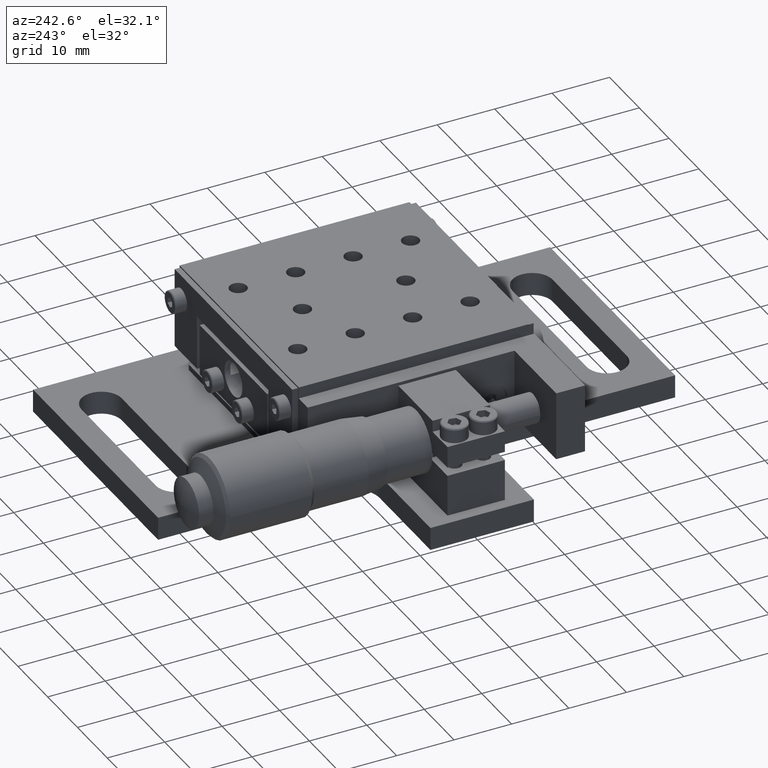
[diagram: clean part render]
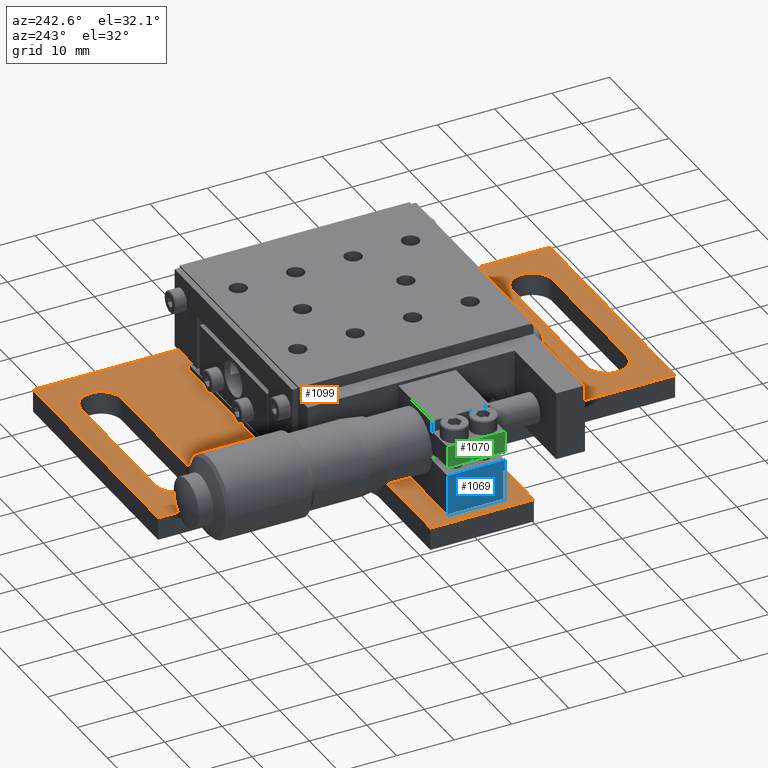
[diagram: same view with three faces highlighted in distinct colors, each labeled with its STEP entity id]
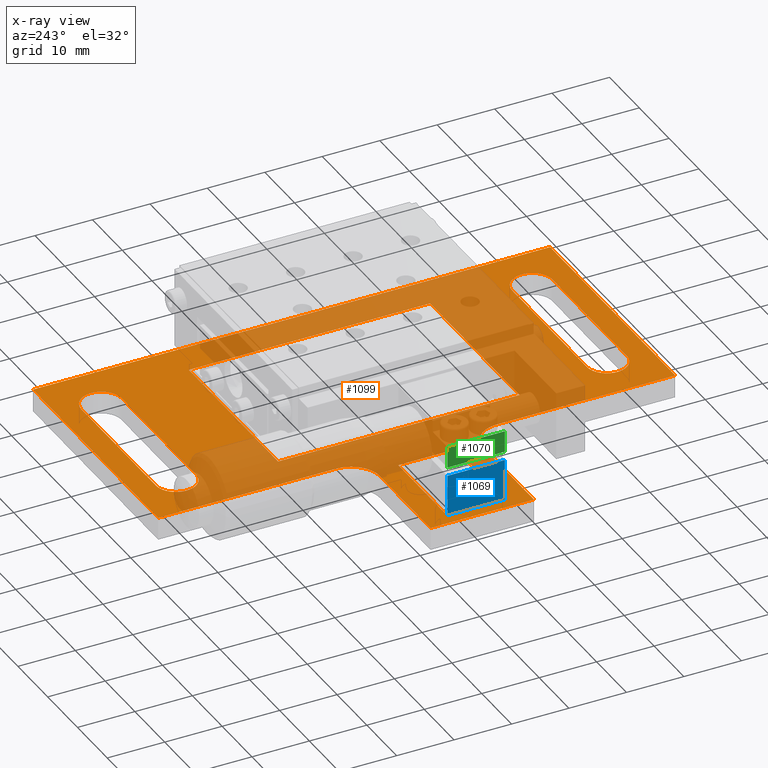
[diagram: x-ray of the same camera — body ghosted, the three highlighted faces saturated]
A machine part, auxiliary view with three faces highlighted in distinct colors.
The next image is the same camera in x-ray (body ghosted, the three faces saturated) — at least one of them is partly hidden behind the body in this view.
Their STEP definitions:

[orange] entity #1099 — the highlighted face is a freeform B-spline surface patch.
#78=FACE_BOUND('',#2377,.T.);
#79=FACE_BOUND('',#2378,.T.);
#80=FACE_BOUND('',#2379,.T.);
#81=FACE_BOUND('',#2380,.T.);
#288=B_SPLINE_SURFACE_WITH_KNOTS('',1,1,((#32999,#33000),(#33001,#33002)),
 .UNSPECIFIED.,.F.,.F.,.F.,(2,2),(2,2),(-8.82,8.82),(-10.02,10.0200000000001),
 .UNSPECIFIED.);
#289=B_SPLINE_SURFACE_WITH_KNOTS('',1,1,((#33003,#33004),(#33005,#33006)),
 .UNSPECIFIED.,.F.,.F.,.F.,(2,2),(2,2),(-10.02,10.02),(-8.82,8.82),
 .UNSPECIFIED.);
#290=B_SPLINE_SURFACE_WITH_KNOTS('',1,1,((#33007,#33008),(#33009,#33010)),
 .UNSPECIFIED.,.F.,.F.,.F.,(2,2),(2,2),(-1.12,11.12),(6.405,15.345),
 .UNSPECIFIED.);
#295=B_SPLINE_SURFACE_WITH_KNOTS('',1,1,((#33045,#33046),(#33047,#33048)),
 .UNSPECIFIED.,.F.,.F.,.F.,(2,2),(2,2),(-11.12,1.12),(-16.07,1.57),
 .UNSPECIFIED.);
#303=B_SPLINE_SURFACE_WITH_KNOTS('',1,1,((#33293,#33294),(#33295,#33296)),
 .UNSPECIFIED.,.F.,.F.,.F.,(2,2),(2,2),(-0.22,1.22),(-4.32,46.32),
 .UNSPECIFIED.);
#304=B_SPLINE_SURFACE_WITH_KNOTS('',1,1,((#33297,#33298),(#33299,#33300)),
 .UNSPECIFIED.,.F.,.F.,.F.,(2,2),(2,2),(-0.22,1.22),(-3.12000000000001,
33.1200000000001),.UNSPECIFIED.);
#305=B_SPLINE_SURFACE_WITH_KNOTS('',1,1,((#33301,#33302),(#33303,#33304)),
 .UNSPECIFIED.,.F.,.F.,.F.,(2,2),(2,2),(-1.22,0.22),(-46.32,4.32),
 .UNSPECIFIED.);
#306=B_SPLINE_SURFACE_WITH_KNOTS('',1,1,((#33305,#33306),(#33307,#33308)),
 .UNSPECIFIED.,.F.,.F.,.F.,(2,2),(2,2),(-1.22,0.22),(-33.12,3.12),
 .UNSPECIFIED.);
#307=B_SPLINE_SURFACE_WITH_KNOTS('',1,1,((#33309,#33310),(#33311,#33312)),
 .UNSPECIFIED.,.F.,.F.,.F.,(2,2),(2,2),(-33.1783172531585,43.8616827468419),
(-54.1200000000001,54.1200000000001),.UNSPECIFIED.);
#308=B_SPLINE_SURFACE_WITH_KNOTS('',1,1,((#33313,#33314),(#33315,#33316)),
 .UNSPECIFIED.,.F.,.F.,.F.,(2,2),(2,2),(-27.62,2.62),(-4.52,0.52),
 .UNSPECIFIED.);
#309=B_SPLINE_SURFACE_WITH_KNOTS('',1,1,((#33335,#33336),(#33337,#33338)),
 .UNSPECIFIED.,.F.,.F.,.F.,(2,2),(2,2),(-2.62,27.62),(-0.52,4.52),
 .UNSPECIFIED.);
#310=B_SPLINE_SURFACE_WITH_KNOTS('',1,1,((#33375,#33376),(#33377,#33378)),
 .UNSPECIFIED.,.F.,.F.,.F.,(2,2),(2,2),(-27.6199999999999,2.61999999999999),
(-4.52,0.52),.UNSPECIFIED.);
#311=B_SPLINE_SURFACE_WITH_KNOTS('',1,1,((#33397,#33398),(#33399,#33400)),
 .UNSPECIFIED.,.F.,.F.,.F.,(2,2),(2,2),(-2.61999999999999,27.6199999999999),
(-0.52,4.52),.UNSPECIFIED.);
#312=B_SPLINE_SURFACE_WITH_KNOTS('',1,1,((#33441,#33442),(#33443,#33444)),
 .UNSPECIFIED.,.F.,.F.,.F.,(2,2),(2,2),(-0.52,4.52),(-1.81999999999999,
18.8199999999999),.UNSPECIFIED.);
#313=B_SPLINE_SURFACE_WITH_KNOTS('',1,1,((#33445,#33446),(#33447,#33448)),
 .UNSPECIFIED.,.F.,.F.,.F.,(2,2),(2,2),(-4.52,0.52),(-19.92,1.92),
 .UNSPECIFIED.);
#314=B_SPLINE_SURFACE_WITH_KNOTS('',1,1,((#33449,#33450),(#33451,#33452)),
 .UNSPECIFIED.,.F.,.F.,.F.,(2,2),(2,2),(-4.52,0.52),(-18.8199999999999,
1.81999999999999),.UNSPECIFIED.);
#315=B_SPLINE_SURFACE_WITH_KNOTS('',1,1,((#33471,#33472),(#33473,#33474)),
 .UNSPECIFIED.,.F.,.F.,.F.,(2,2),(2,2),(-4.52,0.52),(-34.22,3.22),
 .UNSPECIFIED.);
#316=B_SPLINE_SURFACE_WITH_KNOTS('',1,1,((#33475,#33476),(#33477,#33478)),
 .UNSPECIFIED.,.F.,.F.,.F.,(2,2),(2,2),(-4.52,0.52),(-46.32,4.32),
 .UNSPECIFIED.);
#317=B_SPLINE_SURFACE_WITH_KNOTS('',1,1,((#33479,#33480),(#33481,#33482)),
 .UNSPECIFIED.,.F.,.F.,.F.,(2,2),(2,2),(-0.52,4.52),(-9.11999999999998,
99.1199999999998),.UNSPECIFIED.);
#318=B_SPLINE_SURFACE_WITH_KNOTS('',1,1,((#33483,#33484),(#33485,#33486)),
 .UNSPECIFIED.,.F.,.F.,.F.,(2,2),(2,2),(-0.52,4.52),(-4.32000000000001,
46.3200000000001),.UNSPECIFIED.);
#319=B_SPLINE_SURFACE_WITH_KNOTS('',1,1,((#33487,#33488),(#33489,#33490)),
 .UNSPECIFIED.,.F.,.F.,.F.,(2,2),(2,2),(-4.52,0.52),(-34.2200000000001,
3.22),.UNSPECIFIED.);
#1099=ADVANCED_FACE('',(#1720,#78,#79,#80,#81),#307,.T.);
#1720=FACE_OUTER_BOUND('',#2376,.T.);
#2376=EDGE_LOOP('',(#4406,#4407,#4408,#4409,#4410,#4411,#4412,#4413,#4414,
#4415));
#2377=EDGE_LOOP('',(#4416,#4417,#4418,#4419));
#2378=EDGE_LOOP('',(#4420,#4421,#4422,#4423));
#2379=EDGE_LOOP('',(#4424,#4425,#4426,#4427));
#2380=EDGE_LOOP('',(#4428,#4429,#4430,#4431));
#4406=ORIENTED_EDGE('',*,*,#18721,.T.);
#4407=ORIENTED_EDGE('',*,*,#18722,.T.);
#4408=ORIENTED_EDGE('',*,*,#18723,.T.);
#4409=ORIENTED_EDGE('',*,*,#18724,.T.);
#4410=ORIENTED_EDGE('',*,*,#18725,.T.);
#4411=ORIENTED_EDGE('',*,*,#18726,.T.);
#4412=ORIENTED_EDGE('',*,*,#18727,.T.);
#4413=ORIENTED_EDGE('',*,*,#18728,.T.);
#4414=ORIENTED_EDGE('',*,*,#18729,.T.);
#4415=ORIENTED_EDGE('',*,*,#18730,.T.);
#4416=ORIENTED_EDGE('',*,*,#18654,.F.);
#4417=ORIENTED_EDGE('',*,*,#18642,.F.);
#4418=ORIENTED_EDGE('',*,*,#18649,.F.);
#4419=ORIENTED_EDGE('',*,*,#18639,.F.);
#4420=ORIENTED_EDGE('',*,*,#18720,.F.);
#4421=ORIENTED_EDGE('',*,*,#18714,.F.);
#4422=ORIENTED_EDGE('',*,*,#18717,.F.);
#4423=ORIENTED_EDGE('',*,*,#18719,.F.);
#4424=ORIENTED_EDGE('',*,*,#18731,.T.);
#4425=ORIENTED_EDGE('',*,*,#18732,.T.);
#4426=ORIENTED_EDGE('',*,*,#18733,.T.);
#4427=ORIENTED_EDGE('',*,*,#18734,.T.);
#4428=ORIENTED_EDGE('',*,*,#18735,.T.);
#4429=ORIENTED_EDGE('',*,*,#18736,.T.);
#4430=ORIENTED_EDGE('',*,*,#18737,.T.);
#4431=ORIENTED_EDGE('',*,*,#18738,.T.);
#7479=PCURVE('',#288,#10709);
#7483=PCURVE('',#289,#10713);
#7494=PCURVE('',#290,#10724);
#7531=PCURVE('',#295,#10761);
#7622=PCURVE('',#303,#10852);
#7626=PCURVE('',#304,#10856);
#7630=PCURVE('',#305,#10860);
#7634=PCURVE('',#306,#10864);
#7636=PCURVE('',#307,#10866);
#7637=PCURVE('',#307,#10867);
#7638=PCURVE('',#307,#10868);
#7639=PCURVE('',#307,#10869);
#7640=PCURVE('',#307,#10870);
#7641=PCURVE('',#307,#10871);
#7642=PCURVE('',#307,#10872);
#7643=PCURVE('',#307,#10873);
#7644=PCURVE('',#307,#10874);
#7645=PCURVE('',#307,#10875);
#7646=PCURVE('',#307,#10876);
#7647=PCURVE('',#307,#10877);
#7648=PCURVE('',#307,#10878);
#7649=PCURVE('',#307,#10879);
#7650=PCURVE('',#307,#10880);
#7651=PCURVE('',#307,#10881);
#7652=PCURVE('',#307,#10882);
#7653=PCURVE('',#307,#10883);
#7654=PCURVE('',#307,#10884);
#7655=PCURVE('',#307,#10885);
#7656=PCURVE('',#307,#10886);
#7657=PCURVE('',#307,#10887);
#7658=PCURVE('',#307,#10888);
#7659=PCURVE('',#307,#10889);
#7660=PCURVE('',#307,#10890);
#7661=PCURVE('',#307,#10891);
#7664=PCURVE('',#308,#10894);
#7668=PCURVE('',#21984,#10898);
#7672=PCURVE('',#309,#10902);
#7676=PCURVE('',#21985,#10906);
#7680=PCURVE('',#21986,#10910);
#7684=PCURVE('',#310,#10914);
#7688=PCURVE('',#21987,#10918);
#7692=PCURVE('',#311,#10922);
#7713=PCURVE('',#312,#10943);
#7717=PCURVE('',#313,#10947);
#7721=PCURVE('',#314,#10951);
#7724=PCURVE('',#21992,#10954);
#7729=PCURVE('',#315,#10959);
#7733=PCURVE('',#316,#10963);
#7737=PCURVE('',#317,#10967);
#7741=PCURVE('',#318,#10971);
#7745=PCURVE('',#319,#10975);
#7748=PCURVE('',#21993,#10978);
#10709=DEFINITIONAL_REPRESENTATION('',(#14086),#46496);
#10713=DEFINITIONAL_REPRESENTATION('',(#14093),#46496);
#10724=DEFINITIONAL_REPRESENTATION('',(#14109),#46496);
#10761=DEFINITIONAL_REPRESENTATION('',(#14145),#46496);
#10852=DEFINITIONAL_REPRESENTATION('',(#14258),#46496);
#10856=DEFINITIONAL_REPRESENTATION('',(#14265),#46496);
#10860=DEFINITIONAL_REPRESENTATION('',(#14271),#46496);
#10864=DEFINITIONAL_REPRESENTATION('',(#14276),#46496);
#10866=DEFINITIONAL_REPRESENTATION('',(#14279),#46496);
#10867=DEFINITIONAL_REPRESENTATION('',(#14281),#46496);
#10868=DEFINITIONAL_REPRESENTATION('',(#20224),#46496);
#10869=DEFINITIONAL_REPRESENTATION('',(#14283),#46496);
#10870=DEFINITIONAL_REPRESENTATION('',(#14285),#46496);
#10871=DEFINITIONAL_REPRESENTATION('',(#14287),#46496);
#10872=DEFINITIONAL_REPRESENTATION('',(#14289),#46496);
#10873=DEFINITIONAL_REPRESENTATION('',(#14291),#46496);
#10874=DEFINITIONAL_REPRESENTATION('',(#20226),#46496);
#10875=DEFINITIONAL_REPRESENTATION('',(#14293),#46496);
#10876=DEFINITIONAL_REPRESENTATION('',(#14294),#46496);
#10877=DEFINITIONAL_REPRESENTATION('',(#14295),#46496);
#10878=DEFINITIONAL_REPRESENTATION('',(#14296),#46496);
#10879=DEFINITIONAL_REPRESENTATION('',(#14297),#46496);
#10880=DEFINITIONAL_REPRESENTATION('',(#14298),#46496);
#10881=DEFINITIONAL_REPRESENTATION('',(#14299),#46496);
#10882=DEFINITIONAL_REPRESENTATION('',(#14300),#46496);
#10883=DEFINITIONAL_REPRESENTATION('',(#14301),#46496);
#10884=DEFINITIONAL_REPRESENTATION('',(#14303),#46496);
#10885=DEFINITIONAL_REPRESENTATION('',(#20228),#46496);
#10886=DEFINITIONAL_REPRESENTATION('',(#14305),#46496);
#10887=DEFINITIONAL_REPRESENTATION('',(#20230),#46496);
#10888=DEFINITIONAL_REPRESENTATION('',(#20232),#46496);
#10889=DEFINITIONAL_REPRESENTATION('',(#14307),#46496);
#10890=DEFINITIONAL_REPRESENTATION('',(#20234),#46496);
#10891=DEFINITIONAL_REPRESENTATION('',(#14309),#46496);
#10894=DEFINITIONAL_REPRESENTATION('',(#14314),#46496);
#10898=DEFINITIONAL_REPRESENTATION('',(#14320),#46496);
#10902=DEFINITIONAL_REPRESENTATION('',(#14326),#46496);
#10906=DEFINITIONAL_REPRESENTATION('',(#14330),#46496);
#10910=DEFINITIONAL_REPRESENTATION('',(#14335),#46496);
#10914=DEFINITIONAL_REPRESENTATION('',(#14342),#46496);
#10918=DEFINITIONAL_REPRESENTATION('',(#14347),#46496);
#10922=DEFINITIONAL_REPRESENTATION('',(#14352),#46496);
#10943=DEFINITIONAL_REPRESENTATION('',(#14384),#46496);
#10947=DEFINITIONAL_REPRESENTATION('',(#14390),#46496);
#10951=DEFINITIONAL_REPRESENTATION('',(#14396),#46496);
#10954=DEFINITIONAL_REPRESENTATION('',(#14399),#46496);
#10959=DEFINITIONAL_REPRESENTATION('',(#14407),#46496);
#10963=DEFINITIONAL_REPRESENTATION('',(#14413),#46496);
#10967=DEFINITIONAL_REPRESENTATION('',(#14419),#46496);
#10971=DEFINITIONAL_REPRESENTATION('',(#14425),#46496);
#10975=DEFINITIONAL_REPRESENTATION('',(#14431),#46496);
#10978=DEFINITIONAL_REPRESENTATION('',(#14434),#46496);
#14085=B_SPLINE_CURVE_WITH_KNOTS('',1,(#39471,#39472),.UNSPECIFIED.,.F.,
 .F.,(2,2),(-16.5,0.),.UNSPECIFIED.);
#14086=B_SPLINE_CURVE_WITH_KNOTS('',1,(#39473,#39474),.UNSPECIFIED.,.F.,
 .F.,(2,2),(-16.5,0.),.UNSPECIFIED.);
#14092=B_SPLINE_CURVE_WITH_KNOTS('',1,(#39485,#39486),.UNSPECIFIED.,.F.,
 .F.,(2,2),(-16.5,0.),.UNSPECIFIED.);
#14093=B_SPLINE_CURVE_WITH_KNOTS('',1,(#39487,#39488),.UNSPECIFIED.,.F.,
 .F.,(2,2),(-16.5,0.),.UNSPECIFIED.);
#14108=B_SPLINE_CURVE_WITH_KNOTS('',1,(#39535,#39536),.UNSPECIFIED.,.F.,
 .F.,(2,2),(-10.,0.),.UNSPECIFIED.);
#14109=B_SPLINE_CURVE_WITH_KNOTS('',1,(#39537,#39538),.UNSPECIFIED.,.F.,
 .F.,(2,2),(-10.,0.),.UNSPECIFIED.);
#14144=B_SPLINE_CURVE_WITH_KNOTS('',1,(#39817,#39818),.UNSPECIFIED.,.F.,
 .F.,(2,2),(-10.,0.),.UNSPECIFIED.);
#14145=B_SPLINE_CURVE_WITH_KNOTS('',1,(#39819,#39820),.UNSPECIFIED.,.F.,
 .F.,(2,2),(-10.,0.),.UNSPECIFIED.);
#14257=B_SPLINE_CURVE_WITH_KNOTS('',1,(#40233,#40234),.UNSPECIFIED.,.F.,
 .F.,(2,2),(-42.,0.),.UNSPECIFIED.);
#14258=B_SPLINE_CURVE_WITH_KNOTS('',1,(#40235,#40236),.UNSPECIFIED.,.F.,
 .F.,(2,2),(-42.,0.),.UNSPECIFIED.);
#14264=B_SPLINE_CURVE_WITH_KNOTS('',1,(#40247,#40248),.UNSPECIFIED.,.F.,
 .F.,(2,2),(-30.0000000000001,0.),.UNSPECIFIED.);
#14265=B_SPLINE_CURVE_WITH_KNOTS('',1,(#40249,#40250),.UNSPECIFIED.,.F.,
 .F.,(2,2),(-30.0000000000001,0.),.UNSPECIFIED.);
#14270=B_SPLINE_CURVE_WITH_KNOTS('',1,(#40259,#40260),.UNSPECIFIED.,.F.,
 .F.,(2,2),(-42.,0.),.UNSPECIFIED.);
#14271=B_SPLINE_CURVE_WITH_KNOTS('',1,(#40261,#40262),.UNSPECIFIED.,.F.,
 .F.,(2,2),(-42.,0.),.UNSPECIFIED.);
#14275=B_SPLINE_CURVE_WITH_KNOTS('',1,(#40269,#40270),.UNSPECIFIED.,.F.,
 .F.,(2,2),(-30.,0.),.UNSPECIFIED.);
#14276=B_SPLINE_CURVE_WITH_KNOTS('',1,(#40271,#40272),.UNSPECIFIED.,.F.,
 .F.,(2,2),(-30.,0.),.UNSPECIFIED.);
#14278=B_SPLINE_CURVE_WITH_KNOTS('',1,(#40275,#40276),.UNSPECIFIED.,.F.,
 .F.,(2,2),(-18.,0.),.UNSPECIFIED.);
#14279=B_SPLINE_CURVE_WITH_KNOTS('',1,(#40277,#40278),.UNSPECIFIED.,.F.,
 .F.,(2,2),(-18.,0.),.UNSPECIFIED.);
#14280=B_SPLINE_CURVE_WITH_KNOTS('',1,(#40279,#40280),.UNSPECIFIED.,.F.,
 .F.,(2,2),(-16.9999999999999,0.),.UNSPECIFIED.);
#14281=B_SPLINE_CURVE_WITH_KNOTS('',1,(#40281,#40282),.UNSPECIFIED.,.F.,
 .F.,(2,2),(-16.9999999999999,0.),.UNSPECIFIED.);
#14282=B_SPLINE_CURVE_WITH_KNOTS('',1,(#40289,#40290),.UNSPECIFIED.,.F.,
 .F.,(2,2),(-31.0000000000001,0.),.UNSPECIFIED.);
#14283=B_SPLINE_CURVE_WITH_KNOTS('',1,(#40291,#40292),.UNSPECIFIED.,.F.,
 .F.,(2,2),(-31.0000000000001,0.),.UNSPECIFIED.);
#14284=B_SPLINE_CURVE_WITH_KNOTS('',1,(#40293,#40294),.UNSPECIFIED.,.F.,
 .F.,(2,2),(-42.0000000000001,0.),.UNSPECIFIED.);
#14285=B_SPLINE_CURVE_WITH_KNOTS('',1,(#40295,#40296),.UNSPECIFIED.,.F.,
 .F.,(2,2),(-42.0000000000001,0.),.UNSPECIFIED.);
#14286=B_SPLINE_CURVE_WITH_KNOTS('',1,(#40297,#40298),.UNSPECIFIED.,.F.,
 .F.,(2,2),(-89.9999999999998,0.),.UNSPECIFIED.);
#14287=B_SPLINE_CURVE_WITH_KNOTS('',1,(#40299,#40300),.UNSPECIFIED.,.F.,
 .F.,(2,2),(-89.9999999999998,0.),.UNSPECIFIED.);
#14288=B_SPLINE_CURVE_WITH_KNOTS('',1,(#40301,#40302),.UNSPECIFIED.,.F.,
 .F.,(2,2),(-42.,0.),.UNSPECIFIED.);
#14289=B_SPLINE_CURVE_WITH_KNOTS('',1,(#40303,#40304),.UNSPECIFIED.,.F.,
 .F.,(2,2),(-42.,0.),.UNSPECIFIED.);
#14290=B_SPLINE_CURVE_WITH_KNOTS('',1,(#40305,#40306),.UNSPECIFIED.,.F.,
 .F.,(2,2),(-31.,0.),.UNSPECIFIED.);
#14291=B_SPLINE_CURVE_WITH_KNOTS('',1,(#40307,#40308),.UNSPECIFIED.,.F.,
 .F.,(2,2),(-31.,0.),.UNSPECIFIED.);
#14292=B_SPLINE_CURVE_WITH_KNOTS('',1,(#40315,#40316),.UNSPECIFIED.,.F.,
 .F.,(2,2),(-16.9999999999999,0.),.UNSPECIFIED.);
#14293=B_SPLINE_CURVE_WITH_KNOTS('',1,(#40317,#40318),.UNSPECIFIED.,.F.,
 .F.,(2,2),(-16.9999999999999,0.),.UNSPECIFIED.);
#14294=B_SPLINE_CURVE_WITH_KNOTS('',1,(#40319,#40320),.UNSPECIFIED.,.F.,
 .F.,(2,2),(-10.,0.),.UNSPECIFIED.);
#14295=B_SPLINE_CURVE_WITH_KNOTS('',1,(#40321,#40322),.UNSPECIFIED.,.F.,
 .F.,(2,2),(-16.5,0.),.UNSPECIFIED.);
#14296=B_SPLINE_CURVE_WITH_KNOTS('',1,(#40323,#40324),.UNSPECIFIED.,.F.,
 .F.,(2,2),(-10.,0.),.UNSPECIFIED.);
#14297=B_SPLINE_CURVE_WITH_KNOTS('',1,(#40325,#40326),.UNSPECIFIED.,.F.,
 .F.,(2,2),(-16.5,0.),.UNSPECIFIED.);
#14298=B_SPLINE_CURVE_WITH_KNOTS('',1,(#40327,#40328),.UNSPECIFIED.,.F.,
 .F.,(2,2),(-30.,0.),.UNSPECIFIED.);
#14299=B_SPLINE_CURVE_WITH_KNOTS('',1,(#40329,#40330),.UNSPECIFIED.,.F.,
 .F.,(2,2),(-42.,0.),.UNSPECIFIED.);
#14300=B_SPLINE_CURVE_WITH_KNOTS('',1,(#40331,#40332),.UNSPECIFIED.,.F.,
 .F.,(2,2),(-30.0000000000001,0.),.UNSPECIFIED.);
#14301=B_SPLINE_CURVE_WITH_KNOTS('',1,(#40333,#40334),.UNSPECIFIED.,.F.,
 .F.,(2,2),(-42.,0.),.UNSPECIFIED.);
#14302=B_SPLINE_CURVE_WITH_KNOTS('',1,(#40335,#40336),.UNSPECIFIED.,.F.,
 .F.,(2,2),(0.,25.),.UNSPECIFIED.);
#14303=B_SPLINE_CURVE_WITH_KNOTS('',1,(#40337,#40338),.UNSPECIFIED.,.F.,
 .F.,(2,2),(0.,25.),.UNSPECIFIED.);
#14304=B_SPLINE_CURVE_WITH_KNOTS('',1,(#40349,#40350),.UNSPECIFIED.,.F.,
 .F.,(2,2),(0.,25.),.UNSPECIFIED.);
#14305=B_SPLINE_CURVE_WITH_KNOTS('',1,(#40351,#40352),.UNSPECIFIED.,.F.,
 .F.,(2,2),(0.,25.),.UNSPECIFIED.);
#14306=B_SPLINE_CURVE_WITH_KNOTS('',1,(#40373,#40374),.UNSPECIFIED.,.F.,
 .F.,(2,2),(0.,24.9999999999999),.UNSPECIFIED.);
#14307=B_SPLINE_CURVE_WITH_KNOTS('',1,(#40375,#40376),.UNSPECIFIED.,.F.,
 .F.,(2,2),(0.,24.9999999999999),.UNSPECIFIED.);
#14308=B_SPLINE_CURVE_WITH_KNOTS('',1,(#40387,#40388),.UNSPECIFIED.,.F.,
 .F.,(2,2),(0.,24.9999999999999),.UNSPECIFIED.);
#14309=B_SPLINE_CURVE_WITH_KNOTS('',1,(#40389,#40390),.UNSPECIFIED.,.F.,
 .F.,(2,2),(0.,24.9999999999999),.UNSPECIFIED.);
#14314=B_SPLINE_CURVE_WITH_KNOTS('',1,(#40399,#40400),.UNSPECIFIED.,.F.,
 .F.,(2,2),(0.,25.),.UNSPECIFIED.);
#14320=B_SPLINE_CURVE_WITH_KNOTS('',1,(#40416,#40417),.UNSPECIFIED.,.F.,
 .F.,(2,2),(0.,10.9955742875643),.UNSPECIFIED.);
#14326=B_SPLINE_CURVE_WITH_KNOTS('',1,(#40428,#40429),.UNSPECIFIED.,.F.,
 .F.,(2,2),(0.,25.),.UNSPECIFIED.);
#14330=B_SPLINE_CURVE_WITH_KNOTS('',1,(#40441,#40442),.UNSPECIFIED.,.F.,
 .F.,(2,2),(0.,10.9955742875643),.UNSPECIFIED.);
#14335=B_SPLINE_CURVE_WITH_KNOTS('',1,(#40456,#40457),.UNSPECIFIED.,.F.,
 .F.,(2,2),(0.,10.9955742875643),.UNSPECIFIED.);
#14342=B_SPLINE_CURVE_WITH_KNOTS('',1,(#40470,#40471),.UNSPECIFIED.,.F.,
 .F.,(2,2),(0.,24.9999999999999),.UNSPECIFIED.);
#14347=B_SPLINE_CURVE_WITH_KNOTS('',1,(#40485,#40486),.UNSPECIFIED.,.F.,
 .F.,(2,2),(0.,10.9955742875643),.UNSPECIFIED.);
#14352=B_SPLINE_CURVE_WITH_KNOTS('',1,(#40495,#40496),.UNSPECIFIED.,.F.,
 .F.,(2,2),(0.,24.9999999999999),.UNSPECIFIED.);
#14384=B_SPLINE_CURVE_WITH_KNOTS('',1,(#40579,#40580),.UNSPECIFIED.,.F.,
 .F.,(2,2),(-16.9999999999999,0.),.UNSPECIFIED.);
#14390=B_SPLINE_CURVE_WITH_KNOTS('',1,(#40591,#40592),.UNSPECIFIED.,.F.,
 .F.,(2,2),(-18.,0.),.UNSPECIFIED.);
#14396=B_SPLINE_CURVE_WITH_KNOTS('',1,(#40603,#40604),.UNSPECIFIED.,.F.,
 .F.,(2,2),(-16.9999999999999,0.),.UNSPECIFIED.);
#14399=B_SPLINE_CURVE_WITH_KNOTS('',1,(#40612,#40613),.UNSPECIFIED.,.F.,
 .F.,(2,2),(-7.85398163397439,0.),.UNSPECIFIED.);
#14407=B_SPLINE_CURVE_WITH_KNOTS('',1,(#40628,#40629),.UNSPECIFIED.,.F.,
 .F.,(2,2),(-31.,0.),.UNSPECIFIED.);
#14413=B_SPLINE_CURVE_WITH_KNOTS('',1,(#40640,#40641),.UNSPECIFIED.,.F.,
 .F.,(2,2),(-42.,0.),.UNSPECIFIED.);
#14419=B_SPLINE_CURVE_WITH_KNOTS('',1,(#40652,#40653),.UNSPECIFIED.,.F.,
 .F.,(2,2),(-89.9999999999998,0.),.UNSPECIFIED.);
#14425=B_SPLINE_CURVE_WITH_KNOTS('',1,(#40664,#40665),.UNSPECIFIED.,.F.,
 .F.,(2,2),(-42.0000000000001,0.),.UNSPECIFIED.);
#14431=B_SPLINE_CURVE_WITH_KNOTS('',1,(#40676,#40677),.UNSPECIFIED.,.F.,
 .F.,(2,2),(-31.0000000000001,0.),.UNSPECIFIED.);
#14434=B_SPLINE_CURVE_WITH_KNOTS('',1,(#40685,#40686),.UNSPECIFIED.,.F.,
 .F.,(2,2),(-7.85398163397448,0.),.UNSPECIFIED.);
#16955=SURFACE_CURVE('',#14085,(#7479,#7649),.PCURVE_S1.);
#16958=SURFACE_CURVE('',#14092,(#7483,#7647),.PCURVE_S1.);
#16965=SURFACE_CURVE('',#14108,(#7494,#7648),.PCURVE_S1.);
#16970=SURFACE_CURVE('',#14144,(#7531,#7646),.PCURVE_S1.);
#17030=SURFACE_CURVE('',#14257,(#7622,#7651),.PCURVE_S1.);
#17033=SURFACE_CURVE('',#14264,(#7626,#7652),.PCURVE_S1.);
#17035=SURFACE_CURVE('',#14270,(#7630,#7653),.PCURVE_S1.);
#17036=SURFACE_CURVE('',#14275,(#7634,#7650),.PCURVE_S1.);
#17037=SURFACE_CURVE('',#14278,(#7636,#7717),.PCURVE_S1.);
#17038=SURFACE_CURVE('',#14280,(#7637,#7713),.PCURVE_S1.);
#17039=SURFACE_CURVE('',#20223,(#7638,#7748),.PCURVE_S1.);
#17040=SURFACE_CURVE('',#14282,(#7639,#7745),.PCURVE_S1.);
#17041=SURFACE_CURVE('',#14284,(#7640,#7741),.PCURVE_S1.);
#17042=SURFACE_CURVE('',#14286,(#7641,#7737),.PCURVE_S1.);
#17043=SURFACE_CURVE('',#14288,(#7642,#7733),.PCURVE_S1.);
#17044=SURFACE_CURVE('',#14290,(#7643,#7729),.PCURVE_S1.);
#17045=SURFACE_CURVE('',#20225,(#7644,#7724),.PCURVE_S1.);
#17046=SURFACE_CURVE('',#14292,(#7645,#7721),.PCURVE_S1.);
#17047=SURFACE_CURVE('',#14302,(#7654,#7664),.PCURVE_S1.);
#17048=SURFACE_CURVE('',#20227,(#7655,#7668),.PCURVE_S1.);
#17049=SURFACE_CURVE('',#14304,(#7656,#7672),.PCURVE_S1.);
#17050=SURFACE_CURVE('',#20229,(#7657,#7676),.PCURVE_S1.);
#17051=SURFACE_CURVE('',#20231,(#7658,#7680),.PCURVE_S1.);
#17052=SURFACE_CURVE('',#14306,(#7659,#7684),.PCURVE_S1.);
#17053=SURFACE_CURVE('',#20233,(#7660,#7688),.PCURVE_S1.);
#17054=SURFACE_CURVE('',#14308,(#7661,#7692),.PCURVE_S1.);
#18639=EDGE_CURVE('',#21295,#21296,#16955,.T.);
#18642=EDGE_CURVE('',#21297,#21298,#16958,.T.);
#18649=EDGE_CURVE('',#21296,#21297,#16965,.T.);
#18654=EDGE_CURVE('',#21298,#21295,#16970,.T.);
#18714=EDGE_CURVE('',#21343,#21344,#17030,.T.);
#18717=EDGE_CURVE('',#21345,#21343,#17033,.T.);
#18719=EDGE_CURVE('',#21346,#21345,#17035,.T.);
#18720=EDGE_CURVE('',#21344,#21346,#17036,.T.);
#18721=EDGE_CURVE('',#21347,#21348,#17037,.T.);
#18722=EDGE_CURVE('',#21348,#21349,#17038,.T.);
#18723=EDGE_CURVE('',#21349,#21350,#17039,.T.);
#18724=EDGE_CURVE('',#21350,#21351,#17040,.T.);
#18725=EDGE_CURVE('',#21351,#21352,#17041,.T.);
#18726=EDGE_CURVE('',#21352,#21353,#17042,.T.);
#18727=EDGE_CURVE('',#21353,#21354,#17043,.T.);
#18728=EDGE_CURVE('',#21354,#21355,#17044,.T.);
#18729=EDGE_CURVE('',#21355,#21356,#17045,.T.);
#18730=EDGE_CURVE('',#21356,#21347,#17046,.T.);
#18731=EDGE_CURVE('',#21360,#21357,#17047,.T.);
#18732=EDGE_CURVE('',#21357,#21358,#17048,.T.);
#18733=EDGE_CURVE('',#21358,#21359,#17049,.T.);
#18734=EDGE_CURVE('',#21359,#21360,#17050,.T.);
#18735=EDGE_CURVE('',#21364,#21361,#17051,.T.);
#18736=EDGE_CURVE('',#21361,#21362,#17052,.T.);
#18737=EDGE_CURVE('',#21362,#21363,#17053,.T.);
#18738=EDGE_CURVE('',#21363,#21364,#17054,.T.);
#20223=(
BOUNDED_CURVE()
B_SPLINE_CURVE(2,(#40283,#40284,#40285),.UNSPECIFIED.,.F.,.F.)
B_SPLINE_CURVE_WITH_KNOTS((3,3),(-7.85398163397448,0.),.UNSPECIFIED.)
CURVE()
GEOMETRIC_REPRESENTATION_ITEM()
RATIONAL_B_SPLINE_CURVE((1.,0.707106781186549,1.))
REPRESENTATION_ITEM('')
);
#20224=(
BOUNDED_CURVE()
B_SPLINE_CURVE(2,(#40286,#40287,#40288),.UNSPECIFIED.,.F.,.F.)
B_SPLINE_CURVE_WITH_KNOTS((3,3),(-7.85398163397448,0.),.UNSPECIFIED.)
CURVE()
GEOMETRIC_REPRESENTATION_ITEM()
RATIONAL_B_SPLINE_CURVE((1.,0.707106900395835,1.))
REPRESENTATION_ITEM('')
);
#20225=(
BOUNDED_CURVE()
B_SPLINE_CURVE(2,(#40309,#40310,#40311),.UNSPECIFIED.,.F.,.F.)
B_SPLINE_CURVE_WITH_KNOTS((3,3),(-7.85398163397439,0.),.UNSPECIFIED.)
CURVE()
GEOMETRIC_REPRESENTATION_ITEM()
RATIONAL_B_SPLINE_CURVE((1.,0.707106781186554,1.))
REPRESENTATION_ITEM('')
);
#20226=(
BOUNDED_CURVE()
B_SPLINE_CURVE(2,(#40312,#40313,#40314),.UNSPECIFIED.,.F.,.F.)
B_SPLINE_CURVE_WITH_KNOTS((3,3),(-7.85398163397439,0.),.UNSPECIFIED.)
CURVE()
GEOMETRIC_REPRESENTATION_ITEM()
RATIONAL_B_SPLINE_CURVE((1.,0.707106900395842,1.))
REPRESENTATION_ITEM('')
);
#20227=(
BOUNDED_CURVE()
B_SPLINE_CURVE(2,(#40339,#40340,#40341,#40342,#40343),.UNSPECIFIED.,.F.,
 .F.)
B_SPLINE_CURVE_WITH_KNOTS((3,2,3),(0.,5.49778714378214,10.9955742875643),
 .UNSPECIFIED.)
CURVE()
GEOMETRIC_REPRESENTATION_ITEM()
RATIONAL_B_SPLINE_CURVE((1.,0.707106781186548,1.,0.707106781186548,1.))
REPRESENTATION_ITEM('')
);
#20228=(
BOUNDED_CURVE()
B_SPLINE_CURVE(2,(#40344,#40345,#40346,#40347,#40348),.UNSPECIFIED.,.F.,
 .F.)
B_SPLINE_CURVE_WITH_KNOTS((3,2,3),(0.,5.49778714378214,10.9955742875643),
 .UNSPECIFIED.)
CURVE()
GEOMETRIC_REPRESENTATION_ITEM()
RATIONAL_B_SPLINE_CURVE((1.,0.707106781186548,1.,0.707106781186548,1.))
REPRESENTATION_ITEM('')
);
#20229=(
BOUNDED_CURVE()
B_SPLINE_CURVE(2,(#40353,#40354,#40355,#40356,#40357),.UNSPECIFIED.,.F.,
 .F.)
B_SPLINE_CURVE_WITH_KNOTS((3,2,3),(0.,5.49778714378214,10.9955742875643),
 .UNSPECIFIED.)
CURVE()
GEOMETRIC_REPRESENTATION_ITEM()
RATIONAL_B_SPLINE_CURVE((1.,0.707106781186548,1.,0.707106781186548,1.))
REPRESENTATION_ITEM('')
);
#20230=(
BOUNDED_CURVE()
B_SPLINE_CURVE(2,(#40358,#40359,#40360,#40361,#40362),.UNSPECIFIED.,.F.,
 .F.)
B_SPLINE_CURVE_WITH_KNOTS((3,2,3),(0.,5.49778714378214,10.9955742875643),
 .UNSPECIFIED.)
CURVE()
GEOMETRIC_REPRESENTATION_ITEM()
RATIONAL_B_SPLINE_CURVE((1.,0.707106781186548,1.,0.707106781186548,1.))
REPRESENTATION_ITEM('')
);
#20231=(
BOUNDED_CURVE()
B_SPLINE_CURVE(2,(#40363,#40364,#40365,#40366,#40367),.UNSPECIFIED.,.F.,
 .F.)
B_SPLINE_CURVE_WITH_KNOTS((3,2,3),(0.,5.49778714378214,10.9955742875643),
 .UNSPECIFIED.)
CURVE()
GEOMETRIC_REPRESENTATION_ITEM()
RATIONAL_B_SPLINE_CURVE((1.,0.707106781186542,1.,0.707106781186542,1.))
REPRESENTATION_ITEM('')
);
#20232=(
BOUNDED_CURVE()
B_SPLINE_CURVE(2,(#40368,#40369,#40370,#40371,#40372),.UNSPECIFIED.,.F.,
 .F.)
B_SPLINE_CURVE_WITH_KNOTS((3,2,3),(0.,5.49778714378214,10.9955742875643),
 .UNSPECIFIED.)
CURVE()
GEOMETRIC_REPRESENTATION_ITEM()
RATIONAL_B_SPLINE_CURVE((1.,0.707106781186548,1.,0.707106781186548,1.))
REPRESENTATION_ITEM('')
);
#20233=(
BOUNDED_CURVE()
B_SPLINE_CURVE(2,(#40377,#40378,#40379,#40380,#40381),.UNSPECIFIED.,.F.,
 .F.)
B_SPLINE_CURVE_WITH_KNOTS((3,2,3),(0.,5.49778714378214,10.9955742875643),
 .UNSPECIFIED.)
CURVE()
GEOMETRIC_REPRESENTATION_ITEM()
RATIONAL_B_SPLINE_CURVE((1.,0.707106781186548,1.,0.707106781186548,1.))
REPRESENTATION_ITEM('')
);
#20234=(
BOUNDED_CURVE()
B_SPLINE_CURVE(2,(#40382,#40383,#40384,#40385,#40386),.UNSPECIFIED.,.F.,
 .F.)
B_SPLINE_CURVE_WITH_KNOTS((3,2,3),(0.,5.49778714378214,10.9955742875643),
 .UNSPECIFIED.)
CURVE()
GEOMETRIC_REPRESENTATION_ITEM()
RATIONAL_B_SPLINE_CURVE((1.,0.707106781186548,1.,0.707106781186548,1.))
REPRESENTATION_ITEM('')
);
#21295=VERTEX_POINT('',#36466);
#21296=VERTEX_POINT('',#36467);
#21297=VERTEX_POINT('',#36468);
#21298=VERTEX_POINT('',#36469);
#21343=VERTEX_POINT('',#36514);
#21344=VERTEX_POINT('',#36515);
#21345=VERTEX_POINT('',#36516);
#21346=VERTEX_POINT('',#36517);
#21347=VERTEX_POINT('',#36518);
#21348=VERTEX_POINT('',#36519);
#21349=VERTEX_POINT('',#36520);
#21350=VERTEX_POINT('',#36521);
#21351=VERTEX_POINT('',#36522);
#21352=VERTEX_POINT('',#36523);
#21353=VERTEX_POINT('',#36524);
#21354=VERTEX_POINT('',#36525);
#21355=VERTEX_POINT('',#36526);
#21356=VERTEX_POINT('',#36527);
#21357=VERTEX_POINT('',#36528);
#21358=VERTEX_POINT('',#36529);
#21359=VERTEX_POINT('',#36530);
#21360=VERTEX_POINT('',#36531);
#21361=VERTEX_POINT('',#36532);
#21362=VERTEX_POINT('',#36533);
#21363=VERTEX_POINT('',#36534);
#21364=VERTEX_POINT('',#36535);
#21984=(
BOUNDED_SURFACE()
B_SPLINE_SURFACE(1,2,((#33317,#33318,#33319,#33320,#33321,#33322,#33323,
#33324,#33325),(#33326,#33327,#33328,#33329,#33330,#33331,#33332,#33333,
#33334)),.UNSPECIFIED.,.F.,.F.,.F.)
B_SPLINE_SURFACE_WITH_KNOTS((2,2),(3,2,2,2,3),(0.,5.04),(0.,1.5707963267949,
3.14159265358979,4.71238898038469,6.28318530717959),.UNSPECIFIED.)
GEOMETRIC_REPRESENTATION_ITEM()
RATIONAL_B_SPLINE_SURFACE(((1.,0.707106781186548,1.,0.707106781186548,1.,
0.707106781186548,1.,0.707106781186548,1.),(1.,0.707106781186548,1.,0.707106781186548,
1.,0.707106781186548,1.,0.707106781186548,1.)))
REPRESENTATION_ITEM('')
SURFACE()
);
#21985=(
BOUNDED_SURFACE()
B_SPLINE_SURFACE(1,2,((#33339,#33340,#33341,#33342,#33343,#33344,#33345,
#33346,#33347),(#33348,#33349,#33350,#33351,#33352,#33353,#33354,#33355,
#33356)),.UNSPECIFIED.,.F.,.F.,.F.)
B_SPLINE_SURFACE_WITH_KNOTS((2,2),(3,2,2,2,3),(0.,5.04),(0.,1.5707963267949,
3.14159265358979,4.71238898038469,6.28318530717959),.UNSPECIFIED.)
GEOMETRIC_REPRESENTATION_ITEM()
RATIONAL_B_SPLINE_SURFACE(((1.,0.707106781186548,1.,0.707106781186548,1.,
0.707106781186548,1.,0.707106781186548,1.),(1.,0.707106781186548,1.,0.707106781186548,
1.,0.707106781186548,1.,0.707106781186548,1.)))
REPRESENTATION_ITEM('')
SURFACE()
);
#21986=(
BOUNDED_SURFACE()
B_SPLINE_SURFACE(1,2,((#33357,#33358,#33359,#33360,#33361,#33362,#33363,
#33364,#33365),(#33366,#33367,#33368,#33369,#33370,#33371,#33372,#33373,
#33374)),.UNSPECIFIED.,.F.,.F.,.F.)
B_SPLINE_SURFACE_WITH_KNOTS((2,2),(3,2,2,2,3),(0.,5.04),(0.,1.5707963267949,
3.14159265358979,4.71238898038469,6.28318530717959),.UNSPECIFIED.)
GEOMETRIC_REPRESENTATION_ITEM()
RATIONAL_B_SPLINE_SURFACE(((1.,0.707106781186548,1.,0.707106781186548,1.,
0.707106781186548,1.,0.707106781186548,1.),(1.,0.707106781186548,1.,0.707106781186548,
1.,0.707106781186548,1.,0.707106781186548,1.)))
REPRESENTATION_ITEM('')
SURFACE()
);
#21987=(
BOUNDED_SURFACE()
B_SPLINE_SURFACE(1,2,((#33379,#33380,#33381,#33382,#33383,#33384,#33385,
#33386,#33387),(#33388,#33389,#33390,#33391,#33392,#33393,#33394,#33395,
#33396)),.UNSPECIFIED.,.F.,.F.,.F.)
B_SPLINE_SURFACE_WITH_KNOTS((2,2),(3,2,2,2,3),(0.,5.04),(0.,1.5707963267949,
3.14159265358979,4.71238898038469,6.28318530717959),.UNSPECIFIED.)
GEOMETRIC_REPRESENTATION_ITEM()
RATIONAL_B_SPLINE_SURFACE(((1.,0.707106781186548,1.,0.707106781186548,1.,
0.707106781186548,1.,0.707106781186548,1.),(1.,0.707106781186548,1.,0.707106781186548,
1.,0.707106781186548,1.,0.707106781186548,1.)))
REPRESENTATION_ITEM('')
SURFACE()
);
#21992=(
BOUNDED_SURFACE()
B_SPLINE_SURFACE(1,2,((#33453,#33454,#33455,#33456,#33457,#33458,#33459,
#33460,#33461),(#33462,#33463,#33464,#33465,#33466,#33467,#33468,#33469,
#33470)),.UNSPECIFIED.,.F.,.F.,.F.)
B_SPLINE_SURFACE_WITH_KNOTS((2,2),(3,2,2,2,3),(0.,5.04),(0.,1.5707963267949,
3.14159265358979,4.71238898038469,6.28318530717959),.UNSPECIFIED.)
GEOMETRIC_REPRESENTATION_ITEM()
RATIONAL_B_SPLINE_SURFACE(((1.,0.707106781186548,1.,0.707106781186548,1.,
0.707106781186548,1.,0.707106781186548,1.),(1.,0.707106781186548,1.,0.707106781186548,
1.,0.707106781186548,1.,0.707106781186548,1.)))
REPRESENTATION_ITEM('')
SURFACE()
);
#21993=(
BOUNDED_SURFACE()
B_SPLINE_SURFACE(1,2,((#33491,#33492,#33493,#33494,#33495,#33496,#33497,
#33498,#33499),(#33500,#33501,#33502,#33503,#33504,#33505,#33506,#33507,
#33508)),.UNSPECIFIED.,.F.,.F.,.F.)
B_SPLINE_SURFACE_WITH_KNOTS((2,2),(3,2,2,2,3),(0.,5.04),(0.,1.5707963267949,
3.14159265358979,4.71238898038469,6.28318530717959),.UNSPECIFIED.)
GEOMETRIC_REPRESENTATION_ITEM()
RATIONAL_B_SPLINE_SURFACE(((1.,0.707106781186548,1.,0.707106781186548,1.,
0.707106781186548,1.,0.707106781186548,1.),(1.,0.707106781186548,1.,0.707106781186548,
1.,0.707106781186548,1.,0.707106781186548,1.)))
REPRESENTATION_ITEM('')
SURFACE()
);
#32999=CARTESIAN_POINT('',(-11.4300000000005,5.07468965517228,20.1447069675039));
#33000=CARTESIAN_POINT('',(-31.4700000000006,5.07468965517222,20.1447069675039));
#33001=CARTESIAN_POINT('',(-11.4300000000005,5.07468965517228,2.50470696750392));
#33002=CARTESIAN_POINT('',(-31.4700000000006,5.07468965517222,2.50470696750392));
#33003=CARTESIAN_POINT('',(-11.4300000000005,-4.92531034482772,20.1447069675039));
#33004=CARTESIAN_POINT('',(-11.4300000000005,-4.92531034482772,2.50470696750392));
#33005=CARTESIAN_POINT('',(-31.4700000000005,-4.92531034482778,20.1447069675039));
#33006=CARTESIAN_POINT('',(-31.4700000000005,-4.92531034482778,2.50470696750392));
#33007=CARTESIAN_POINT('',(-29.7000000000005,-6.04531034482785,12.1697069675039));
#33008=CARTESIAN_POINT('',(-29.7000000000005,-6.04531034482785,3.22970696750392));
#33009=CARTESIAN_POINT('',(-29.7000000000005,6.19468965517215,12.1697069675039));
#33010=CARTESIAN_POINT('',(-29.7000000000005,6.19468965517215,3.22970696750392));
#33045=CARTESIAN_POINT('',(-13.2000000000005,6.19468965517225,20.1447069675039));
#33046=CARTESIAN_POINT('',(-13.2000000000005,6.19468965517225,2.50470696750392));
#33047=CARTESIAN_POINT('',(-13.2000000000005,-6.04531034482775,20.1447069675039));
#33048=CARTESIAN_POINT('',(-13.2000000000005,-6.04531034482775,2.50470696750392));
#33293=CARTESIAN_POINT('',(26.2999999999996,25.3946896551723,3.85470696750392));
#33294=CARTESIAN_POINT('',(26.2999999999997,-25.2453103448278,3.85470696750392));
#33295=CARTESIAN_POINT('',(26.2999999999996,25.3946896551723,5.29470696750392));
#33296=CARTESIAN_POINT('',(26.2999999999997,-25.2453103448278,5.29470696750392));
#33297=CARTESIAN_POINT('',(29.4199999999998,-20.9253103448277,3.85470696750392));
#33298=CARTESIAN_POINT('',(-6.82000000000025,-20.9253103448278,3.85470696750392));
#33299=CARTESIAN_POINT('',(29.4199999999998,-20.9253103448277,5.29470696750392));
#33300=CARTESIAN_POINT('',(-6.82000000000025,-20.9253103448278,5.29470696750392));
#33301=CARTESIAN_POINT('',(-3.70000000000039,25.3946896551722,5.29470696750392));
#33302=CARTESIAN_POINT('',(-3.70000000000024,-25.2453103448277,5.29470696750392));
#33303=CARTESIAN_POINT('',(-3.70000000000039,25.3946896551722,3.85470696750392));
#33304=CARTESIAN_POINT('',(-3.70000000000024,-25.2453103448277,3.85470696750392));
#33305=CARTESIAN_POINT('',(29.4199999999996,21.0746896551723,5.29470696750392));
#33306=CARTESIAN_POINT('',(-6.82000000000037,21.0746896551722,5.29470696750392));
#33307=CARTESIAN_POINT('',(29.4199999999996,21.0746896551723,3.85470696750392));
#33308=CARTESIAN_POINT('',(-6.82000000000037,21.0746896551722,3.85470696750392));
#33309=CARTESIAN_POINT('',(38.8199999999998,54.1946896551725,4.07470696750392));
#33310=CARTESIAN_POINT('',(38.8200000000001,-54.0453103448277,4.07470696750392));
#33311=CARTESIAN_POINT('',(-38.2200000000006,54.1946896551722,4.07470696750392));
#33312=CARTESIAN_POINT('',(-38.2200000000003,-54.045310344828,4.07470696750392));
#33313=CARTESIAN_POINT('',(26.4199999999996,41.0746896551723,4.59470696750392));
#33314=CARTESIAN_POINT('',(26.4199999999996,41.0746896551723,-0.445293032496082));
#33315=CARTESIAN_POINT('',(-3.82000000000042,41.0746896551722,4.59470696750392));
#33316=CARTESIAN_POINT('',(-3.82000000000042,41.0746896551722,-0.445293032496082));
#33317=CARTESIAN_POINT('',(20.2999999999996,37.5746896551723,-0.445293032496082));
#33318=CARTESIAN_POINT('',(20.2999999999996,34.0746896551723,-0.445293032496082));
#33319=CARTESIAN_POINT('',(23.7999999999996,34.0746896551723,-0.445293032496082));
#33320=CARTESIAN_POINT('',(27.2999999999996,34.0746896551723,-0.445293032496082));
#33321=CARTESIAN_POINT('',(27.2999999999996,37.5746896551723,-0.445293032496082));
#33322=CARTESIAN_POINT('',(27.2999999999996,41.0746896551723,-0.445293032496082));
#33323=CARTESIAN_POINT('',(23.7999999999996,41.0746896551723,-0.445293032496082));
#33324=CARTESIAN_POINT('',(20.2999999999996,41.0746896551723,-0.445293032496082));
#33325=CARTESIAN_POINT('',(20.2999999999996,37.5746896551723,-0.445293032496082));
#33326=CARTESIAN_POINT('',(20.2999999999996,37.5746896551723,4.59470696750392));
#33327=CARTESIAN_POINT('',(20.2999999999996,34.0746896551723,4.59470696750392));
#33328=CARTESIAN_POINT('',(23.7999999999996,34.0746896551723,4.59470696750392));
#33329=CARTESIAN_POINT('',(27.2999999999996,34.0746896551723,4.59470696750392));
#33330=CARTESIAN_POINT('',(27.2999999999996,37.5746896551723,4.59470696750392));
#33331=CARTESIAN_POINT('',(27.2999999999996,41.0746896551723,4.59470696750392));
#33332=CARTESIAN_POINT('',(23.7999999999996,41.0746896551723,4.59470696750392));
#33333=CARTESIAN_POINT('',(20.2999999999996,41.0746896551723,4.59470696750392));
#33334=CARTESIAN_POINT('',(20.2999999999996,37.5746896551723,4.59470696750392));
#33335=CARTESIAN_POINT('',(26.4199999999996,34.0746896551724,-0.445293032496082));
#33336=CARTESIAN_POINT('',(26.4199999999996,34.0746896551724,4.59470696750392));
#33337=CARTESIAN_POINT('',(-3.8200000000004,34.0746896551723,-0.445293032496082));
#33338=CARTESIAN_POINT('',(-3.8200000000004,34.0746896551723,4.59470696750392));
#33339=CARTESIAN_POINT('',(2.29999999999959,37.5746896551723,-0.445293032496082));
#33340=CARTESIAN_POINT('',(2.29999999999959,41.0746896551723,-0.445293032496082));
#33341=CARTESIAN_POINT('',(-1.20000000000041,41.0746896551723,-0.445293032496082));
#33342=CARTESIAN_POINT('',(-4.70000000000041,41.0746896551723,-0.445293032496082));
#33343=CARTESIAN_POINT('',(-4.70000000000041,37.5746896551723,-0.445293032496082));
#33344=CARTESIAN_POINT('',(-4.70000000000041,34.0746896551723,-0.445293032496082));
#33345=CARTESIAN_POINT('',(-1.20000000000041,34.0746896551723,-0.445293032496082));
#33346=CARTESIAN_POINT('',(2.29999999999959,34.0746896551723,-0.445293032496082));
#33347=CARTESIAN_POINT('',(2.29999999999959,37.5746896551723,-0.445293032496082));
#33348=CARTESIAN_POINT('',(2.29999999999959,37.5746896551723,4.59470696750392));
#33349=CARTESIAN_POINT('',(2.29999999999959,41.0746896551723,4.59470696750392));
#33350=CARTESIAN_POINT('',(-1.20000000000041,41.0746896551723,4.59470696750392));
#33351=CARTESIAN_POINT('',(-4.70000000000041,41.0746896551723,4.59470696750392));
#33352=CARTESIAN_POINT('',(-4.70000000000041,37.5746896551723,4.59470696750392));
#33353=CARTESIAN_POINT('',(-4.70000000000041,34.0746896551723,4.59470696750392));
#33354=CARTESIAN_POINT('',(-1.20000000000041,34.0746896551723,4.59470696750392));
#33355=CARTESIAN_POINT('',(2.29999999999959,34.0746896551723,4.59470696750392));
#33356=CARTESIAN_POINT('',(2.29999999999959,37.5746896551723,4.59470696750392));
#33357=CARTESIAN_POINT('',(2.29999999999979,-37.4253103448278,-0.445293032496082));
#33358=CARTESIAN_POINT('',(2.29999999999979,-33.9253103448278,-0.445293032496082));
#33359=CARTESIAN_POINT('',(-1.20000000000021,-33.9253103448278,-0.445293032496082));
#33360=CARTESIAN_POINT('',(-4.70000000000021,-33.9253103448278,-0.445293032496082));
#33361=CARTESIAN_POINT('',(-4.70000000000021,-37.4253103448278,-0.445293032496082));
#33362=CARTESIAN_POINT('',(-4.70000000000021,-40.9253103448278,-0.445293032496082));
#33363=CARTESIAN_POINT('',(-1.20000000000021,-40.9253103448278,-0.445293032496082));
#33364=CARTESIAN_POINT('',(2.29999999999979,-40.9253103448278,-0.445293032496082));
#33365=CARTESIAN_POINT('',(2.29999999999979,-37.4253103448278,-0.445293032496082));
#33366=CARTESIAN_POINT('',(2.29999999999979,-37.4253103448278,4.59470696750392));
#33367=CARTESIAN_POINT('',(2.29999999999979,-33.9253103448278,4.59470696750392));
#33368=CARTESIAN_POINT('',(-1.20000000000021,-33.9253103448278,4.59470696750392));
#33369=CARTESIAN_POINT('',(-4.70000000000021,-33.9253103448278,4.59470696750392));
#33370=CARTESIAN_POINT('',(-4.70000000000021,-37.4253103448278,4.59470696750392));
#33371=CARTESIAN_POINT('',(-4.70000000000021,-40.9253103448278,4.59470696750392));
#33372=CARTESIAN_POINT('',(-1.20000000000021,-40.9253103448278,4.59470696750392));
#33373=CARTESIAN_POINT('',(2.29999999999979,-40.9253103448278,4.59470696750392));
#33374=CARTESIAN_POINT('',(2.29999999999979,-37.4253103448278,4.59470696750392));
#33375=CARTESIAN_POINT('',(26.4199999999998,-33.9253103448277,4.59470696750392));
#33376=CARTESIAN_POINT('',(26.4199999999998,-33.9253103448277,-0.445293032496082));
#33377=CARTESIAN_POINT('',(-3.82000000000009,-33.9253103448278,4.59470696750392));
#33378=CARTESIAN_POINT('',(-3.82000000000009,-33.9253103448278,-0.445293032496082));
#33379=CARTESIAN_POINT('',(20.2999999999998,-37.4253103448277,-0.445293032496082));
#33380=CARTESIAN_POINT('',(20.2999999999998,-40.9253103448277,-0.445293032496082));
#33381=CARTESIAN_POINT('',(23.7999999999998,-40.9253103448277,-0.445293032496082));
#33382=CARTESIAN_POINT('',(27.2999999999998,-40.9253103448277,-0.445293032496082));
#33383=CARTESIAN_POINT('',(27.2999999999998,-37.4253103448277,-0.445293032496082));
#33384=CARTESIAN_POINT('',(27.2999999999998,-33.9253103448277,-0.445293032496082));
#33385=CARTESIAN_POINT('',(23.7999999999998,-33.9253103448277,-0.445293032496082));
#33386=CARTESIAN_POINT('',(20.2999999999998,-33.9253103448277,-0.445293032496082));
#33387=CARTESIAN_POINT('',(20.2999999999998,-37.4253103448277,-0.445293032496082));
#33388=CARTESIAN_POINT('',(20.2999999999998,-37.4253103448277,4.59470696750392));
#33389=CARTESIAN_POINT('',(20.2999999999998,-40.9253103448277,4.59470696750392));
#33390=CARTESIAN_POINT('',(23.7999999999998,-40.9253103448277,4.59470696750392));
#33391=CARTESIAN_POINT('',(27.2999999999998,-40.9253103448277,4.59470696750392));
#33392=CARTESIAN_POINT('',(27.2999999999998,-37.4253103448277,4.59470696750392));
#33393=CARTESIAN_POINT('',(27.2999999999998,-33.9253103448277,4.59470696750392));
#33394=CARTESIAN_POINT('',(23.7999999999998,-33.9253103448277,4.59470696750392));
#33395=CARTESIAN_POINT('',(20.2999999999998,-33.9253103448277,4.59470696750392));
#33396=CARTESIAN_POINT('',(20.2999999999998,-37.4253103448277,4.59470696750392));
#33397=CARTESIAN_POINT('',(26.4199999999998,-40.9253103448276,-0.445293032496082));
#33398=CARTESIAN_POINT('',(26.4199999999998,-40.9253103448276,4.59470696750392));
#33399=CARTESIAN_POINT('',(-3.82000000000008,-40.9253103448277,-0.445293032496082));
#33400=CARTESIAN_POINT('',(-3.82000000000008,-40.9253103448277,4.59470696750392));
#33441=CARTESIAN_POINT('',(-12.8800000000004,-8.92531034482763,-0.445293032496082));
#33442=CARTESIAN_POINT('',(-33.5200000000003,-8.92531034482783,-0.445293032496082));
#33443=CARTESIAN_POINT('',(-12.8800000000004,-8.92531034482763,4.59470696750392));
#33444=CARTESIAN_POINT('',(-33.5200000000003,-8.92531034482783,4.59470696750392));
#33445=CARTESIAN_POINT('',(-31.7000000000004,10.9946896551722,4.59470696750392));
#33446=CARTESIAN_POINT('',(-31.7000000000003,-10.8453103448279,4.59470696750392));
#33447=CARTESIAN_POINT('',(-31.7000000000004,10.9946896551722,-0.445293032496082));
#33448=CARTESIAN_POINT('',(-31.7000000000003,-10.8453103448279,-0.445293032496082));
#33449=CARTESIAN_POINT('',(-12.8800000000004,9.0746896551722,4.59470696750392));
#33450=CARTESIAN_POINT('',(-33.5200000000003,9.07468965517215,4.59470696750392));
#33451=CARTESIAN_POINT('',(-12.8800000000004,9.0746896551722,-0.445293032496082));
#33452=CARTESIAN_POINT('',(-33.5200000000003,9.07468965517215,-0.445293032496082));
#33453=CARTESIAN_POINT('',(-19.7000000000005,14.0746896551722,-0.445293032496082));
#33454=CARTESIAN_POINT('',(-19.7000000000005,9.07468965517223,-0.445293032496082));
#33455=CARTESIAN_POINT('',(-14.7000000000005,9.07468965517223,-0.445293032496082));
#33456=CARTESIAN_POINT('',(-9.7000000000005,9.07468965517223,-0.445293032496082));
#33457=CARTESIAN_POINT('',(-9.7000000000005,14.0746896551722,-0.445293032496082));
#33458=CARTESIAN_POINT('',(-9.7000000000005,19.0746896551722,-0.445293032496082));
#33459=CARTESIAN_POINT('',(-14.7000000000005,19.0746896551722,-0.445293032496082));
#33460=CARTESIAN_POINT('',(-19.7000000000005,19.0746896551722,-0.445293032496082));
#33461=CARTESIAN_POINT('',(-19.7000000000005,14.0746896551722,-0.445293032496082));
#33462=CARTESIAN_POINT('',(-19.7000000000005,14.0746896551722,4.59470696750392));
#33463=CARTESIAN_POINT('',(-19.7000000000005,9.07468965517223,4.59470696750392));
#33464=CARTESIAN_POINT('',(-14.7000000000005,9.07468965517223,4.59470696750392));
#33465=CARTESIAN_POINT('',(-9.7000000000005,9.07468965517223,4.59470696750392));
#33466=CARTESIAN_POINT('',(-9.7000000000005,14.0746896551722,4.59470696750392));
#33467=CARTESIAN_POINT('',(-9.7000000000005,19.0746896551722,4.59470696750392));
#33468=CARTESIAN_POINT('',(-14.7000000000005,19.0746896551722,4.59470696750392));
#33469=CARTESIAN_POINT('',(-19.7000000000005,19.0746896551722,4.59470696750392));
#33470=CARTESIAN_POINT('',(-19.7000000000005,14.0746896551722,4.59470696750392));
#33471=CARTESIAN_POINT('',(-9.70000000000042,48.2946896551722,4.59470696750392));
#33472=CARTESIAN_POINT('',(-9.70000000000046,10.8546896551722,4.59470696750392));
#33473=CARTESIAN_POINT('',(-9.70000000000042,48.2946896551722,-0.445293032496082));
#33474=CARTESIAN_POINT('',(-9.70000000000046,10.8546896551722,-0.445293032496082));
#33475=CARTESIAN_POINT('',(36.6199999999996,45.0746896551723,4.59470696750392));
#33476=CARTESIAN_POINT('',(-14.0200000000004,45.0746896551723,4.59470696750392));
#33477=CARTESIAN_POINT('',(36.6199999999996,45.0746896551723,-0.445293032496082));
#33478=CARTESIAN_POINT('',(-14.0200000000004,45.0746896551723,-0.445293032496082));
#33479=CARTESIAN_POINT('',(32.2999999999996,54.1946896551722,-0.445293032496082));
#33480=CARTESIAN_POINT('',(32.2999999999999,-54.0453103448275,-0.445293032496082));
#33481=CARTESIAN_POINT('',(32.2999999999996,54.1946896551722,4.59470696750392));
#33482=CARTESIAN_POINT('',(32.2999999999999,-54.0453103448275,4.59470696750392));
#33483=CARTESIAN_POINT('',(36.6199999999998,-44.9253103448275,-0.445293032496082));
#33484=CARTESIAN_POINT('',(-14.0200000000003,-44.9253103448278,-0.445293032496082));
#33485=CARTESIAN_POINT('',(36.6199999999998,-44.9253103448275,4.59470696750392));
#33486=CARTESIAN_POINT('',(-14.0200000000003,-44.9253103448278,4.59470696750392));
#33487=CARTESIAN_POINT('',(-9.70000000000039,-10.7053103448276,4.59470696750392));
#33488=CARTESIAN_POINT('',(-9.70000000000029,-48.1453103448278,4.59470696750392));
#33489=CARTESIAN_POINT('',(-9.70000000000039,-10.7053103448276,-0.445293032496082));
#33490=CARTESIAN_POINT('',(-9.70000000000029,-48.1453103448278,-0.445293032496082));
#33491=CARTESIAN_POINT('',(-19.7000000000004,-13.9253103448277,-0.445293032496082));
#33492=CARTESIAN_POINT('',(-19.7000000000004,-18.9253103448277,-0.445293032496082));
#33493=CARTESIAN_POINT('',(-14.7000000000004,-18.9253103448277,-0.445293032496082));
#33494=CARTESIAN_POINT('',(-9.7000000000004,-18.9253103448277,-0.445293032496082));
#33495=CARTESIAN_POINT('',(-9.7000000000004,-13.9253103448277,-0.445293032496082));
#33496=CARTESIAN_POINT('',(-9.7000000000004,-8.92531034482765,-0.445293032496082));
#33497=CARTESIAN_POINT('',(-14.7000000000004,-8.92531034482765,-0.445293032496082));
#33498=CARTESIAN_POINT('',(-19.7000000000004,-8.92531034482765,-0.445293032496082));
#33499=CARTESIAN_POINT('',(-19.7000000000004,-13.9253103448277,-0.445293032496082));
#33500=CARTESIAN_POINT('',(-19.7000000000004,-13.9253103448277,4.59470696750392));
#33501=CARTESIAN_POINT('',(-19.7000000000004,-18.9253103448277,4.59470696750392));
#33502=CARTESIAN_POINT('',(-14.7000000000004,-18.9253103448277,4.59470696750392));
#33503=CARTESIAN_POINT('',(-9.7000000000004,-18.9253103448277,4.59470696750392));
#33504=CARTESIAN_POINT('',(-9.7000000000004,-13.9253103448277,4.59470696750392));
#33505=CARTESIAN_POINT('',(-9.7000000000004,-8.92531034482765,4.59470696750392));
#33506=CARTESIAN_POINT('',(-14.7000000000004,-8.92531034482765,4.59470696750392));
#33507=CARTESIAN_POINT('',(-19.7000000000004,-8.92531034482765,4.59470696750392));
#33508=CARTESIAN_POINT('',(-19.7000000000004,-13.9253103448277,4.59470696750392));
#36466=CARTESIAN_POINT('',(-13.2000000000005,5.07468965517226,4.07470696750392));
#36467=CARTESIAN_POINT('',(-29.7000000000005,5.07468965517218,4.07470696750392));
#36468=CARTESIAN_POINT('',(-29.7000000000005,-4.92531034482782,4.07470696750392));
#36469=CARTESIAN_POINT('',(-13.2000000000005,-4.92531034482774,4.07470696750392));
#36514=CARTESIAN_POINT('',(26.2999999999998,-20.9253103448278,4.07470696750392));
#36515=CARTESIAN_POINT('',(26.2999999999996,21.0746896551723,4.07470696750392));
#36516=CARTESIAN_POINT('',(-3.70000000000025,-20.9253103448278,4.07470696750392));
#36517=CARTESIAN_POINT('',(-3.70000000000037,21.0746896551722,4.07470696750392));
#36518=CARTESIAN_POINT('',(-31.7000000000003,9.07468965517215,4.07470696750392));
#36519=CARTESIAN_POINT('',(-31.7000000000003,-8.92531034482784,4.07470696750392));
#36520=CARTESIAN_POINT('',(-14.7000000000004,-8.92531034482765,4.07470696750392));
#36521=CARTESIAN_POINT('',(-9.70000000000039,-13.9253103448277,4.07470696750392));
#36522=CARTESIAN_POINT('',(-9.7000000000003,-44.9253103448278,4.07470696750392));
#36523=CARTESIAN_POINT('',(32.2999999999998,-44.9253103448276,4.07470696750392));
#36524=CARTESIAN_POINT('',(32.2999999999996,45.0746896551723,4.07470696750392));
#36525=CARTESIAN_POINT('',(-9.70000000000043,45.0746896551723,4.07470696750392));
#36526=CARTESIAN_POINT('',(-9.70000000000048,14.0746896551722,4.07470696750392));
#36527=CARTESIAN_POINT('',(-14.7000000000004,9.07468965517222,4.07470696750392));
#36528=CARTESIAN_POINT('',(23.7999999999996,41.0746896551723,4.07470696750392));
#36529=CARTESIAN_POINT('',(23.7999999999996,34.0746896551723,4.07470696750392));
#36530=CARTESIAN_POINT('',(-1.2000000000004,34.0746896551723,4.07470696750392));
#36531=CARTESIAN_POINT('',(-1.20000000000042,41.0746896551723,4.07470696750392));
#36532=CARTESIAN_POINT('',(-1.20000000000017,-33.9253103448278,4.07470696750392));
#36533=CARTESIAN_POINT('',(23.7999999999998,-33.9253103448277,4.07470696750392));
#36534=CARTESIAN_POINT('',(23.7999999999998,-40.9253103448277,4.07470696750392));
#36535=CARTESIAN_POINT('',(-1.20000000000013,-40.9253103448277,4.07470696750392));
#39471=CARTESIAN_POINT('',(-13.2000000000005,5.07468965517226,4.07470696750392));
#39472=CARTESIAN_POINT('',(-29.7000000000005,5.07468965517218,4.07470696750392));
#39473=CARTESIAN_POINT('',(7.25,-8.25));
#39474=CARTESIAN_POINT('',(7.25,8.25));
#39485=CARTESIAN_POINT('',(-29.7000000000005,-4.92531034482782,4.07470696750392));
#39486=CARTESIAN_POINT('',(-13.2000000000005,-4.92531034482774,4.07470696750392));
#39487=CARTESIAN_POINT('',(8.25,7.25));
#39488=CARTESIAN_POINT('',(-8.25,7.25));
#39535=CARTESIAN_POINT('',(-29.7000000000005,5.07468965517218,4.07470696750392));
#39536=CARTESIAN_POINT('',(-29.7000000000005,-4.92531034482782,4.07470696750392));
#39537=CARTESIAN_POINT('',(10.,14.5));
#39538=CARTESIAN_POINT('',(-1.71420986158458E-30,14.5));
#39817=CARTESIAN_POINT('',(-13.2000000000005,-4.92531034482774,4.07470696750392));
#39818=CARTESIAN_POINT('',(-13.2000000000005,5.07468965517226,4.07470696750392));
#39819=CARTESIAN_POINT('',(0.,0.));
#39820=CARTESIAN_POINT('',(-10.,1.23913006887261E-30));
#40233=CARTESIAN_POINT('',(26.2999999999998,-20.9253103448278,4.07470696750392));
#40234=CARTESIAN_POINT('',(26.2999999999996,21.0746896551723,4.07470696750392));
#40235=CARTESIAN_POINT('',(0.,42.));
#40236=CARTESIAN_POINT('',(0.,0.));
#40247=CARTESIAN_POINT('',(-3.70000000000025,-20.9253103448278,4.07470696750392));
#40248=CARTESIAN_POINT('',(26.2999999999998,-20.9253103448278,4.07470696750392));
#40249=CARTESIAN_POINT('',(0.,30.0000000000001));
#40250=CARTESIAN_POINT('',(0.,0.));
#40259=CARTESIAN_POINT('',(-3.70000000000037,21.0746896551722,4.07470696750392));
#40260=CARTESIAN_POINT('',(-3.70000000000025,-20.9253103448278,4.07470696750392));
#40261=CARTESIAN_POINT('',(0.,-42.));
#40262=CARTESIAN_POINT('',(0.,0.));
#40269=CARTESIAN_POINT('',(26.2999999999996,21.0746896551723,4.07470696750392));
#40270=CARTESIAN_POINT('',(-3.70000000000037,21.0746896551722,4.07470696750392));
#40271=CARTESIAN_POINT('',(0.,-30.));
#40272=CARTESIAN_POINT('',(0.,0.));
#40275=CARTESIAN_POINT('',(-31.7000000000003,9.07468965517215,4.07470696750392));
#40276=CARTESIAN_POINT('',(-31.7000000000003,-8.92531034482784,4.07470696750392));
#40277=CARTESIAN_POINT('',(37.3416827468417,-9.));
#40278=CARTESIAN_POINT('',(37.3416827468418,9.));
#40279=CARTESIAN_POINT('',(-31.7000000000003,-8.92531034482784,4.07470696750392));
#40280=CARTESIAN_POINT('',(-14.7000000000004,-8.92531034482765,4.07470696750392));
#40281=CARTESIAN_POINT('',(37.3416827468418,9.));
#40282=CARTESIAN_POINT('',(20.3416827468419,8.99999999999985));
#40283=CARTESIAN_POINT('',(-14.7000000000004,-8.92531034482765,4.07470696750392));
#40284=CARTESIAN_POINT('',(-9.7000000000004,-8.92531034482765,4.07470696750392));
#40285=CARTESIAN_POINT('',(-9.70000000000039,-13.9253103448277,4.07470696750392));
#40286=CARTESIAN_POINT('',(20.3416827468419,8.99999999999985));
#40287=CARTESIAN_POINT('',(15.3416844327156,8.99999999999986));
#40288=CARTESIAN_POINT('',(15.3416827468419,13.9999999999999));
#40289=CARTESIAN_POINT('',(-9.70000000000039,-13.9253103448277,4.07470696750392));
#40290=CARTESIAN_POINT('',(-9.7000000000003,-44.9253103448278,4.07470696750392));
#40291=CARTESIAN_POINT('',(15.3416827468419,13.9999999999999));
#40292=CARTESIAN_POINT('',(15.3416827468419,45.));
#40293=CARTESIAN_POINT('',(-9.7000000000003,-44.9253103448278,4.07470696750392));
#40294=CARTESIAN_POINT('',(32.2999999999998,-44.9253103448276,4.07470696750392));
#40295=CARTESIAN_POINT('',(15.3416827468419,45.));
#40296=CARTESIAN_POINT('',(-26.6583172531582,44.9999999999999));
#40297=CARTESIAN_POINT('',(32.2999999999998,-44.9253103448276,4.07470696750392));
#40298=CARTESIAN_POINT('',(32.2999999999996,45.0746896551723,4.07470696750392));
#40299=CARTESIAN_POINT('',(-26.6583172531582,44.9999999999999));
#40300=CARTESIAN_POINT('',(-26.6583172531583,-44.9999999999999));
#40301=CARTESIAN_POINT('',(32.2999999999996,45.0746896551723,4.07470696750392));
#40302=CARTESIAN_POINT('',(-9.70000000000043,45.0746896551723,4.07470696750392));
#40303=CARTESIAN_POINT('',(-26.6583172531583,-44.9999999999999));
#40304=CARTESIAN_POINT('',(15.3416827468417,-45.));
#40305=CARTESIAN_POINT('',(-9.70000000000043,45.0746896551723,4.07470696750392));
#40306=CARTESIAN_POINT('',(-9.70000000000048,14.0746896551722,4.07470696750392));
#40307=CARTESIAN_POINT('',(15.3416827468417,-45.));
#40308=CARTESIAN_POINT('',(15.3416827468419,-14.));
#40309=CARTESIAN_POINT('',(-9.70000000000048,14.0746896551722,4.07470696750392));
#40310=CARTESIAN_POINT('',(-9.70000000000049,9.0746896551723,4.07470696750392));
#40311=CARTESIAN_POINT('',(-14.7000000000004,9.07468965517222,4.07470696750392));
#40312=CARTESIAN_POINT('',(15.3416827468419,-14.));
#40313=CARTESIAN_POINT('',(15.3416827468419,-9.0000016858739));
#40314=CARTESIAN_POINT('',(20.3416827468418,-9.00000000000004));
#40315=CARTESIAN_POINT('',(-14.7000000000004,9.07468965517222,4.07470696750392));
#40316=CARTESIAN_POINT('',(-31.7000000000003,9.07468965517215,4.07470696750392));
#40317=CARTESIAN_POINT('',(20.3416827468418,-9.00000000000004));
#40318=CARTESIAN_POINT('',(37.3416827468417,-9.));
#40319=CARTESIAN_POINT('',(18.841682746842,4.99999999999995));
#40320=CARTESIAN_POINT('',(18.8416827468419,-5.00000000000005));
#40321=CARTESIAN_POINT('',(35.341682746842,5.));
#40322=CARTESIAN_POINT('',(18.841682746842,4.99999999999995));
#40323=CARTESIAN_POINT('',(35.3416827468419,-5.));
#40324=CARTESIAN_POINT('',(35.341682746842,5.));
#40325=CARTESIAN_POINT('',(18.8416827468419,-5.00000000000005));
#40326=CARTESIAN_POINT('',(35.3416827468419,-5.));
#40327=CARTESIAN_POINT('',(-20.6583172531582,-21.));
#40328=CARTESIAN_POINT('',(9.34168274684175,-21.));
#40329=CARTESIAN_POINT('',(-20.6583172531583,21.0000000000001));
#40330=CARTESIAN_POINT('',(-20.6583172531582,-21.));
#40331=CARTESIAN_POINT('',(9.34168274684175,21.));
#40332=CARTESIAN_POINT('',(-20.6583172531583,21.0000000000001));
#40333=CARTESIAN_POINT('',(9.34168274684175,-21.));
#40334=CARTESIAN_POINT('',(9.34168274684175,21.));
#40335=CARTESIAN_POINT('',(-1.20000000000042,41.0746896551723,4.07470696750392));
#40336=CARTESIAN_POINT('',(23.7999999999996,41.0746896551723,4.07470696750392));
#40337=CARTESIAN_POINT('',(6.84168274684175,-41.));
#40338=CARTESIAN_POINT('',(-18.1583172531583,-41.0000000000001));
#40339=CARTESIAN_POINT('',(23.7999999999996,41.0746896551723,4.07470696750392));
#40340=CARTESIAN_POINT('',(27.2999999999996,41.0746896551723,4.07470696750392));
#40341=CARTESIAN_POINT('',(27.2999999999996,37.5746896551723,4.07470696750392));
#40342=CARTESIAN_POINT('',(27.2999999999996,34.0746896551723,4.07470696750392));
#40343=CARTESIAN_POINT('',(23.7999999999996,34.0746896551723,4.07470696750392));
#40344=CARTESIAN_POINT('',(-18.1583172531583,-41.0000000000001));
#40345=CARTESIAN_POINT('',(-21.6583172531583,-41.));
#40346=CARTESIAN_POINT('',(-21.6583172531583,-37.5));
#40347=CARTESIAN_POINT('',(-21.6583172531583,-34.));
#40348=CARTESIAN_POINT('',(-18.1583172531583,-34.0000000000001));
#40349=CARTESIAN_POINT('',(23.7999999999996,34.0746896551723,4.07470696750392));
#40350=CARTESIAN_POINT('',(-1.2000000000004,34.0746896551723,4.07470696750392));
#40351=CARTESIAN_POINT('',(-18.1583172531583,-34.0000000000001));
#40352=CARTESIAN_POINT('',(6.84168274684175,-34.));
#40353=CARTESIAN_POINT('',(-1.20000000000041,34.0746896551723,4.07470696750392));
#40354=CARTESIAN_POINT('',(-4.7000000000004,34.0746896551723,4.07470696750392));
#40355=CARTESIAN_POINT('',(-4.70000000000041,37.5746896551722,4.07470696750392));
#40356=CARTESIAN_POINT('',(-4.70000000000041,41.0746896551722,4.07470696750392));
#40357=CARTESIAN_POINT('',(-1.20000000000042,41.0746896551723,4.07470696750392));
#40358=CARTESIAN_POINT('',(6.84168274684175,-34.));
#40359=CARTESIAN_POINT('',(10.3416827468417,-34.));
#40360=CARTESIAN_POINT('',(10.3416827468417,-37.5));
#40361=CARTESIAN_POINT('',(10.3416827468417,-41.));
#40362=CARTESIAN_POINT('',(6.84168274684175,-41.));
#40363=CARTESIAN_POINT('',(-1.20000000000013,-40.9253103448277,4.07470696750392));
#40364=CARTESIAN_POINT('',(-4.70000000000017,-40.9253103448278,4.07470696750392));
#40365=CARTESIAN_POINT('',(-4.7000000000002,-37.4253103448278,4.07470696750392));
#40366=CARTESIAN_POINT('',(-4.70000000000022,-33.9253103448277,4.07470696750392));
#40367=CARTESIAN_POINT('',(-1.20000000000018,-33.9253103448278,4.07470696750392));
#40368=CARTESIAN_POINT('',(6.84168274684164,41.));
#40369=CARTESIAN_POINT('',(10.3416827468416,41.0000000000001));
#40370=CARTESIAN_POINT('',(10.3416827468418,37.5000000000001));
#40371=CARTESIAN_POINT('',(10.3416827468419,34.0000000000001));
#40372=CARTESIAN_POINT('',(6.84168274684175,34.));
#40373=CARTESIAN_POINT('',(-1.20000000000017,-33.9253103448278,4.07470696750392));
#40374=CARTESIAN_POINT('',(23.7999999999998,-33.9253103448277,4.07470696750392));
#40375=CARTESIAN_POINT('',(6.84168274684175,34.));
#40376=CARTESIAN_POINT('',(-18.1583172531583,34.));
#40377=CARTESIAN_POINT('',(23.7999999999998,-33.9253103448277,4.07470696750392));
#40378=CARTESIAN_POINT('',(27.2999999999998,-33.9253103448277,4.07470696750392));
#40379=CARTESIAN_POINT('',(27.2999999999998,-37.4253103448277,4.07470696750392));
#40380=CARTESIAN_POINT('',(27.2999999999998,-40.9253103448277,4.07470696750392));
#40381=CARTESIAN_POINT('',(23.7999999999998,-40.9253103448277,4.07470696750392));
#40382=CARTESIAN_POINT('',(-18.1583172531583,34.));
#40383=CARTESIAN_POINT('',(-21.6583172531583,34.));
#40384=CARTESIAN_POINT('',(-21.6583172531583,37.5));
#40385=CARTESIAN_POINT('',(-21.6583172531582,41.));
#40386=CARTESIAN_POINT('',(-18.1583172531583,41.));
#40387=CARTESIAN_POINT('',(23.7999999999998,-40.9253103448277,4.07470696750392));
#40388=CARTESIAN_POINT('',(-1.20000000000013,-40.9253103448277,4.07470696750392));
#40389=CARTESIAN_POINT('',(-18.1583172531583,41.));
#40390=CARTESIAN_POINT('',(6.84168274684164,41.));
#40399=CARTESIAN_POINT('',(0.,-4.));
#40400=CARTESIAN_POINT('',(-25.,-4.));
#40416=CARTESIAN_POINT('',(4.52,4.71238898038469));
#40417=CARTESIAN_POINT('',(4.52,1.5707963267949));
#40428=CARTESIAN_POINT('',(0.,4.));
#40429=CARTESIAN_POINT('',(25.,4.));
#40441=CARTESIAN_POINT('',(4.52,4.71238898038469));
#40442=CARTESIAN_POINT('',(4.52,1.5707963267949));
#40456=CARTESIAN_POINT('',(4.52,4.71238898038469));
#40457=CARTESIAN_POINT('',(4.52,1.5707963267949));
#40470=CARTESIAN_POINT('',(0.,-4.));
#40471=CARTESIAN_POINT('',(-24.9999999999999,-4.));
#40485=CARTESIAN_POINT('',(4.52,4.71238898038469));
#40486=CARTESIAN_POINT('',(4.52,1.5707963267949));
#40495=CARTESIAN_POINT('',(0.,4.));
#40496=CARTESIAN_POINT('',(24.9999999999999,4.));
#40579=CARTESIAN_POINT('',(4.,16.9999999999999));
#40580=CARTESIAN_POINT('',(4.,0.));
#40591=CARTESIAN_POINT('',(-4.,-18.));
#40592=CARTESIAN_POINT('',(-4.,0.));
#40603=CARTESIAN_POINT('',(-4.,-16.9999999999999));
#40604=CARTESIAN_POINT('',(-4.,0.));
#40612=CARTESIAN_POINT('',(4.52,3.14159265358979));
#40613=CARTESIAN_POINT('',(4.52,1.5707963267949));
#40628=CARTESIAN_POINT('',(-4.,-31.));
#40629=CARTESIAN_POINT('',(-4.,0.));
#40640=CARTESIAN_POINT('',(-4.,-42.));
#40641=CARTESIAN_POINT('',(-4.,0.));
#40652=CARTESIAN_POINT('',(4.,89.9999999999998));
#40653=CARTESIAN_POINT('',(4.,0.));
#40664=CARTESIAN_POINT('',(4.,42.0000000000001));
#40665=CARTESIAN_POINT('',(4.,0.));
#40676=CARTESIAN_POINT('',(-4.,-31.0000000000001));
#40677=CARTESIAN_POINT('',(-4.,0.));
#40685=CARTESIAN_POINT('',(4.52,4.71238898038469));
#40686=CARTESIAN_POINT('',(4.52,3.14159265358979));
#46496=(
GEOMETRIC_REPRESENTATION_CONTEXT(2)
PARAMETRIC_REPRESENTATION_CONTEXT()
REPRESENTATION_CONTEXT('pspace','')
);

[blue] entity #1069 — the highlighted face is a freeform B-spline surface patch.
#287=B_SPLINE_SURFACE_WITH_KNOTS('',1,1,((#32995,#32996),(#32997,#32998)),
 .UNSPECIFIED.,.F.,.F.,.F.,(2,2),(2,2),(-0.698426834945094,6.48269518439482),
(-1.12000000000003,11.1200000000001),.UNSPECIFIED.);
#288=B_SPLINE_SURFACE_WITH_KNOTS('',1,1,((#32999,#33000),(#33001,#33002)),
 .UNSPECIFIED.,.F.,.F.,.F.,(2,2),(2,2),(-8.82,8.82),(-10.02,10.0200000000001),
 .UNSPECIFIED.);
#289=B_SPLINE_SURFACE_WITH_KNOTS('',1,1,((#33003,#33004),(#33005,#33006)),
 .UNSPECIFIED.,.F.,.F.,.F.,(2,2),(2,2),(-10.02,10.02),(-8.82,8.82),
 .UNSPECIFIED.);
#290=B_SPLINE_SURFACE_WITH_KNOTS('',1,1,((#33007,#33008),(#33009,#33010)),
 .UNSPECIFIED.,.F.,.F.,.F.,(2,2),(2,2),(-1.12,11.12),(6.405,15.345),
 .UNSPECIFIED.);
#307=B_SPLINE_SURFACE_WITH_KNOTS('',1,1,((#33309,#33310),(#33311,#33312)),
 .UNSPECIFIED.,.F.,.F.,.F.,(2,2),(2,2),(-33.1783172531585,43.8616827468419),
(-54.1200000000001,54.1200000000001),.UNSPECIFIED.);
#1069=ADVANCED_FACE('',(#1690),#290,.T.);
#1690=FACE_OUTER_BOUND('',#2337,.T.);
#2337=EDGE_LOOP('',(#4262,#4263,#4264,#4265));
#4262=ORIENTED_EDGE('',*,*,#18632,.F.);
#4263=ORIENTED_EDGE('',*,*,#18640,.F.);
#4264=ORIENTED_EDGE('',*,*,#18649,.T.);
#4265=ORIENTED_EDGE('',*,*,#18641,.F.);
#7463=PCURVE('',#287,#10693);
#7480=PCURVE('',#288,#10710);
#7482=PCURVE('',#289,#10712);
#7492=PCURVE('',#290,#10722);
#7493=PCURVE('',#290,#10723);
#7494=PCURVE('',#290,#10724);
#7495=PCURVE('',#290,#10725);
#7648=PCURVE('',#307,#10878);
#10693=DEFINITIONAL_REPRESENTATION('',(#14071),#46496);
#10710=DEFINITIONAL_REPRESENTATION('',(#14088),#46496);
#10712=DEFINITIONAL_REPRESENTATION('',(#14091),#46496);
#10722=DEFINITIONAL_REPRESENTATION('',(#14106),#46496);
#10723=DEFINITIONAL_REPRESENTATION('',(#14107),#46496);
#10724=DEFINITIONAL_REPRESENTATION('',(#14109),#46496);
#10725=DEFINITIONAL_REPRESENTATION('',(#14110),#46496);
#10878=DEFINITIONAL_REPRESENTATION('',(#14296),#46496);
#14070=B_SPLINE_CURVE_WITH_KNOTS('',1,(#39397,#39398),.UNSPECIFIED.,.F.,
 .F.,(2,2),(-10.,0.),.UNSPECIFIED.);
#14071=B_SPLINE_CURVE_WITH_KNOTS('',1,(#39399,#39400),.UNSPECIFIED.,.F.,
 .F.,(2,2),(-10.,0.),.UNSPECIFIED.);
#14087=B_SPLINE_CURVE_WITH_KNOTS('',1,(#39475,#39476),.UNSPECIFIED.,.F.,
 .F.,(2,2),(-7.25,0.),.UNSPECIFIED.);
#14088=B_SPLINE_CURVE_WITH_KNOTS('',1,(#39477,#39478),.UNSPECIFIED.,.F.,
 .F.,(2,2),(-7.25,0.),.UNSPECIFIED.);
#14090=B_SPLINE_CURVE_WITH_KNOTS('',1,(#39481,#39482),.UNSPECIFIED.,.F.,
 .F.,(2,2),(-7.25,0.),.UNSPECIFIED.);
#14091=B_SPLINE_CURVE_WITH_KNOTS('',1,(#39483,#39484),.UNSPECIFIED.,.F.,
 .F.,(2,2),(-7.25,0.),.UNSPECIFIED.);
#14106=B_SPLINE_CURVE_WITH_KNOTS('',1,(#39531,#39532),.UNSPECIFIED.,.F.,
 .F.,(2,2),(-10.,0.),.UNSPECIFIED.);
#14107=B_SPLINE_CURVE_WITH_KNOTS('',1,(#39533,#39534),.UNSPECIFIED.,.F.,
 .F.,(2,2),(-7.25,0.),.UNSPECIFIED.);
#14108=B_SPLINE_CURVE_WITH_KNOTS('',1,(#39535,#39536),.UNSPECIFIED.,.F.,
 .F.,(2,2),(-10.,0.),.UNSPECIFIED.);
#14109=B_SPLINE_CURVE_WITH_KNOTS('',1,(#39537,#39538),.UNSPECIFIED.,.F.,
 .F.,(2,2),(-10.,0.),.UNSPECIFIED.);
#14110=B_SPLINE_CURVE_WITH_KNOTS('',1,(#39539,#39540),.UNSPECIFIED.,.F.,
 .F.,(2,2),(-7.25,0.),.UNSPECIFIED.);
#14296=B_SPLINE_CURVE_WITH_KNOTS('',1,(#40323,#40324),.UNSPECIFIED.,.F.,
 .F.,(2,2),(-10.,0.),.UNSPECIFIED.);
#16948=SURFACE_CURVE('',#14070,(#7463,#7492),.PCURVE_S1.);
#16956=SURFACE_CURVE('',#14087,(#7480,#7493),.PCURVE_S1.);
#16957=SURFACE_CURVE('',#14090,(#7482,#7495),.PCURVE_S1.);
#16965=SURFACE_CURVE('',#14108,(#7494,#7648),.PCURVE_S1.);
#18632=EDGE_CURVE('',#21290,#21289,#16948,.T.);
#18640=EDGE_CURVE('',#21296,#21290,#16956,.T.);
#18641=EDGE_CURVE('',#21289,#21297,#16957,.T.);
#18649=EDGE_CURVE('',#21296,#21297,#16965,.T.);
#21289=VERTEX_POINT('',#36460);
#21290=VERTEX_POINT('',#36461);
#21296=VERTEX_POINT('',#36467);
#21297=VERTEX_POINT('',#36468);
#32995=CARTESIAN_POINT('',(-23.2173048156056,6.19468965517228,11.3247069675039));
#32996=CARTESIAN_POINT('',(-23.2173048156056,-6.04531034482786,11.3247069675039));
#32997=CARTESIAN_POINT('',(-30.3984268349455,6.19468965517226,11.3247069675039));
#32998=CARTESIAN_POINT('',(-30.3984268349455,-6.04531034482788,11.3247069675039));
#32999=CARTESIAN_POINT('',(-11.4300000000005,5.07468965517228,20.1447069675039));
#33000=CARTESIAN_POINT('',(-31.4700000000006,5.07468965517222,20.1447069675039));
#33001=CARTESIAN_POINT('',(-11.4300000000005,5.07468965517228,2.50470696750392));
#33002=CARTESIAN_POINT('',(-31.4700000000006,5.07468965517222,2.50470696750392));
#33003=CARTESIAN_POINT('',(-11.4300000000005,-4.92531034482772,20.1447069675039));
#33004=CARTESIAN_POINT('',(-11.4300000000005,-4.92531034482772,2.50470696750392));
#33005=CARTESIAN_POINT('',(-31.4700000000005,-4.92531034482778,20.1447069675039));
#33006=CARTESIAN_POINT('',(-31.4700000000005,-4.92531034482778,2.50470696750392));
#33007=CARTESIAN_POINT('',(-29.7000000000005,-6.04531034482785,12.1697069675039));
#33008=CARTESIAN_POINT('',(-29.7000000000005,-6.04531034482785,3.22970696750392));
#33009=CARTESIAN_POINT('',(-29.7000000000005,6.19468965517215,12.1697069675039));
#33010=CARTESIAN_POINT('',(-29.7000000000005,6.19468965517215,3.22970696750392));
#33309=CARTESIAN_POINT('',(38.8199999999998,54.1946896551725,4.07470696750392));
#33310=CARTESIAN_POINT('',(38.8200000000001,-54.0453103448277,4.07470696750392));
#33311=CARTESIAN_POINT('',(-38.2200000000006,54.1946896551722,4.07470696750392));
#33312=CARTESIAN_POINT('',(-38.2200000000003,-54.045310344828,4.07470696750392));
#36460=CARTESIAN_POINT('',(-29.7000000000005,-4.92531034482782,11.3247069675039));
#36461=CARTESIAN_POINT('',(-29.7000000000005,5.07468965517218,11.3247069675039));
#36467=CARTESIAN_POINT('',(-29.7000000000005,5.07468965517218,4.07470696750392));
#36468=CARTESIAN_POINT('',(-29.7000000000005,-4.92531034482782,4.07470696750392));
#39397=CARTESIAN_POINT('',(-29.7000000000005,5.07468965517218,11.3247069675039));
#39398=CARTESIAN_POINT('',(-29.7000000000005,-4.92531034482782,11.3247069675039));
#39399=CARTESIAN_POINT('',(5.7842683494498,8.38189549782669E-14));
#39400=CARTESIAN_POINT('',(5.78426834944983,10.0000000000001));
#39475=CARTESIAN_POINT('',(-29.7000000000005,5.07468965517218,4.07470696750392));
#39476=CARTESIAN_POINT('',(-29.7000000000005,5.07468965517218,11.3247069675039));
#39477=CARTESIAN_POINT('',(7.25,8.25));
#39478=CARTESIAN_POINT('',(-1.11022302462515E-15,8.25));
#39481=CARTESIAN_POINT('',(-29.7000000000005,-4.92531034482782,11.3247069675039));
#39482=CARTESIAN_POINT('',(-29.7000000000005,-4.92531034482782,4.07470696750392));
#39483=CARTESIAN_POINT('',(8.25,-1.11022302462515E-15));
#39484=CARTESIAN_POINT('',(8.25,7.25));
#39531=CARTESIAN_POINT('',(10.,7.25));
#39532=CARTESIAN_POINT('',(-8.57104930792292E-31,7.25));
#39533=CARTESIAN_POINT('',(10.,14.5));
#39534=CARTESIAN_POINT('',(10.,7.25));
#39535=CARTESIAN_POINT('',(-29.7000000000005,5.07468965517218,4.07470696750392));
#39536=CARTESIAN_POINT('',(-29.7000000000005,-4.92531034482782,4.07470696750392));
#39537=CARTESIAN_POINT('',(10.,14.5));
#39538=CARTESIAN_POINT('',(-1.71420986158458E-30,14.5));
#39539=CARTESIAN_POINT('',(-8.57104930792292E-31,7.25));
#39540=CARTESIAN_POINT('',(-1.71420986158458E-30,14.5));
#40323=CARTESIAN_POINT('',(35.3416827468419,-5.));
#40324=CARTESIAN_POINT('',(35.341682746842,5.));
#46496=(
GEOMETRIC_REPRESENTATION_CONTEXT(2)
PARAMETRIC_REPRESENTATION_CONTEXT()
REPRESENTATION_CONTEXT('pspace','')
);

[green] entity #1070 — the highlighted face is a freeform B-spline surface patch.
#286=B_SPLINE_SURFACE_WITH_KNOTS('',1,1,((#32991,#32992),(#32993,#32994)),
 .UNSPECIFIED.,.F.,.F.,.F.,(2,2),(2,2),(-6.482695184395,0.698426834945032),
(-11.12,1.12000000000011),.UNSPECIFIED.);
#288=B_SPLINE_SURFACE_WITH_KNOTS('',1,1,((#32999,#33000),(#33001,#33002)),
 .UNSPECIFIED.,.F.,.F.,.F.,(2,2),(2,2),(-8.82,8.82),(-10.02,10.0200000000001),
 .UNSPECIFIED.);
#289=B_SPLINE_SURFACE_WITH_KNOTS('',1,1,((#33003,#33004),(#33005,#33006)),
 .UNSPECIFIED.,.F.,.F.,.F.,(2,2),(2,2),(-10.02,10.02),(-8.82,8.82),
 .UNSPECIFIED.);
#291=B_SPLINE_SURFACE_WITH_KNOTS('',1,1,((#33011,#33012),(#33013,#33014)),
 .UNSPECIFIED.,.F.,.F.,.F.,(2,2),(2,2),(-1.12,11.12),(1.505,6.245),
 .UNSPECIFIED.);
#293=B_SPLINE_SURFACE_WITH_KNOTS('',1,1,((#33019,#33020),(#33021,#33022)),
 .UNSPECIFIED.,.F.,.F.,.F.,(2,2),(2,2),(-3.93444542386331,3.93444542386331),
(-6.60115270789981,6.90414608604844),.UNSPECIFIED.);
#1070=ADVANCED_FACE('',(#1691),#291,.T.);
#1691=FACE_OUTER_BOUND('',#2338,.T.);
#2338=EDGE_LOOP('',(#4266,#4267,#4268,#4269));
#4266=ORIENTED_EDGE('',*,*,#18626,.F.);
#4267=ORIENTED_EDGE('',*,*,#18647,.F.);
#4268=ORIENTED_EDGE('',*,*,#18650,.T.);
#4269=ORIENTED_EDGE('',*,*,#18634,.F.);
#7449=PCURVE('',#286,#10679);
#7474=PCURVE('',#288,#10704);
#7488=PCURVE('',#289,#10718);
#7496=PCURVE('',#291,#10726);
#7497=PCURVE('',#291,#10727);
#7498=PCURVE('',#291,#10728);
#7499=PCURVE('',#291,#10729);
#7506=PCURVE('',#293,#10736);
#10679=DEFINITIONAL_REPRESENTATION('',(#14057),#46496);
#10704=DEFINITIONAL_REPRESENTATION('',(#14076),#46496);
#10718=DEFINITIONAL_REPRESENTATION('',(#14103),#46496);
#10726=DEFINITIONAL_REPRESENTATION('',(#14111),#46496);
#10727=DEFINITIONAL_REPRESENTATION('',(#14112),#46496);
#10728=DEFINITIONAL_REPRESENTATION('',(#14114),#46496);
#10729=DEFINITIONAL_REPRESENTATION('',(#14115),#46496);
#10736=DEFINITIONAL_REPRESENTATION('',(#14124),#46496);
#14056=B_SPLINE_CURVE_WITH_KNOTS('',1,(#39347,#39348),.UNSPECIFIED.,.F.,
 .F.,(2,2),(-10.,0.),.UNSPECIFIED.);
#14057=B_SPLINE_CURVE_WITH_KNOTS('',1,(#39349,#39350),.UNSPECIFIED.,.F.,
 .F.,(2,2),(-10.,0.),.UNSPECIFIED.);
#14075=B_SPLINE_CURVE_WITH_KNOTS('',1,(#39451,#39452),.UNSPECIFIED.,.F.,
 .F.,(2,2),(-3.75,0.),.UNSPECIFIED.);
#14076=B_SPLINE_CURVE_WITH_KNOTS('',1,(#39453,#39454),.UNSPECIFIED.,.F.,
 .F.,(2,2),(-3.75,0.),.UNSPECIFIED.);
#14102=B_SPLINE_CURVE_WITH_KNOTS('',1,(#39505,#39506),.UNSPECIFIED.,.F.,
 .F.,(2,2),(-3.75,0.),.UNSPECIFIED.);
#14103=B_SPLINE_CURVE_WITH_KNOTS('',1,(#39507,#39508),.UNSPECIFIED.,.F.,
 .F.,(2,2),(-3.75,0.),.UNSPECIFIED.);
#14111=B_SPLINE_CURVE_WITH_KNOTS('',1,(#39541,#39542),.UNSPECIFIED.,.F.,
 .F.,(2,2),(-10.,0.),.UNSPECIFIED.);
#14112=B_SPLINE_CURVE_WITH_KNOTS('',1,(#39543,#39544),.UNSPECIFIED.,.F.,
 .F.,(2,2),(-3.75,0.),.UNSPECIFIED.);
#14113=B_SPLINE_CURVE_WITH_KNOTS('',1,(#39545,#39546),.UNSPECIFIED.,.F.,
 .F.,(2,2),(0.,10.),.UNSPECIFIED.);
#14114=B_SPLINE_CURVE_WITH_KNOTS('',1,(#39547,#39548),.UNSPECIFIED.,.F.,
 .F.,(2,2),(0.,10.),.UNSPECIFIED.);
#14115=B_SPLINE_CURVE_WITH_KNOTS('',1,(#39549,#39550),.UNSPECIFIED.,.F.,
 .F.,(2,2),(-3.75,0.),.UNSPECIFIED.);
#14124=B_SPLINE_CURVE_WITH_KNOTS('',1,(#39567,#39568),.UNSPECIFIED.,.F.,
 .F.,(2,2),(0.,10.),.UNSPECIFIED.);
#16942=SURFACE_CURVE('',#14056,(#7449,#7496),.PCURVE_S1.);
#16950=SURFACE_CURVE('',#14075,(#7474,#7499),.PCURVE_S1.);
#16963=SURFACE_CURVE('',#14102,(#7488,#7497),.PCURVE_S1.);
#16966=SURFACE_CURVE('',#14113,(#7498,#7506),.PCURVE_S1.);
#18626=EDGE_CURVE('',#21283,#21285,#16942,.T.);
#18634=EDGE_CURVE('',#21285,#21291,#16950,.T.);
#18647=EDGE_CURVE('',#21302,#21283,#16963,.T.);
#18650=EDGE_CURVE('',#21302,#21291,#16966,.T.);
#21283=VERTEX_POINT('',#36454);
#21285=VERTEX_POINT('',#36456);
#21291=VERTEX_POINT('',#36462);
#21302=VERTEX_POINT('',#36473);
#32991=CARTESIAN_POINT('',(-23.2173048156056,-6.04531034482786,12.8247069675039));
#32992=CARTESIAN_POINT('',(-23.2173048156056,6.19468965517228,12.8247069675039));
#32993=CARTESIAN_POINT('',(-30.3984268349456,-6.04531034482788,12.8247069675039));
#32994=CARTESIAN_POINT('',(-30.3984268349456,6.19468965517226,12.8247069675039));
#32999=CARTESIAN_POINT('',(-11.4300000000005,5.07468965517228,20.1447069675039));
#33000=CARTESIAN_POINT('',(-31.4700000000006,5.07468965517222,20.1447069675039));
#33001=CARTESIAN_POINT('',(-11.4300000000005,5.07468965517228,2.50470696750392));
#33002=CARTESIAN_POINT('',(-31.4700000000006,5.07468965517222,2.50470696750392));
#33003=CARTESIAN_POINT('',(-11.4300000000005,-4.92531034482772,20.1447069675039));
#33004=CARTESIAN_POINT('',(-11.4300000000005,-4.92531034482772,2.50470696750392));
#33005=CARTESIAN_POINT('',(-31.4700000000005,-4.92531034482778,20.1447069675039));
#33006=CARTESIAN_POINT('',(-31.4700000000005,-4.92531034482778,2.50470696750392));
#33011=CARTESIAN_POINT('',(-29.7000000000005,-6.04531034482785,17.0697069675039));
#33012=CARTESIAN_POINT('',(-29.7000000000005,-6.04531034482785,12.3297069675039));
#33013=CARTESIAN_POINT('',(-29.7000000000005,6.19468965517215,17.0697069675039));
#33014=CARTESIAN_POINT('',(-29.7000000000005,6.19468965517215,12.3297069675039));
#33019=CARTESIAN_POINT('',(-23.2655545761372,6.67584236307197,16.5747069675039));
#33020=CARTESIAN_POINT('',(-23.2655545761372,-6.82945643087627,16.5747069675039));
#33021=CARTESIAN_POINT('',(-31.1344454238638,6.67584236307195,16.5747069675039));
#33022=CARTESIAN_POINT('',(-31.1344454238638,-6.8294564308763,16.5747069675039));
#36454=CARTESIAN_POINT('',(-29.7000000000005,-4.92531034482782,12.8247069675039));
#36456=CARTESIAN_POINT('',(-29.7000000000006,5.07468965517218,12.8247069675039));
#36462=CARTESIAN_POINT('',(-29.7000000000005,5.07468965517218,16.5747069675039));
#36473=CARTESIAN_POINT('',(-29.7000000000005,-4.92531034482782,16.5747069675039));
#39347=CARTESIAN_POINT('',(-29.7000000000005,-4.92531034482782,12.8247069675039));
#39348=CARTESIAN_POINT('',(-29.7000000000006,5.07468965517218,12.8247069675039));
#39349=CARTESIAN_POINT('',(-7.24076883107911E-14,-10.));
#39350=CARTESIAN_POINT('',(0.,0.));
#39451=CARTESIAN_POINT('',(-29.7000000000006,5.07468965517218,12.8247069675039));
#39452=CARTESIAN_POINT('',(-29.7000000000005,5.07468965517218,16.5747069675039));
#39453=CARTESIAN_POINT('',(-1.5,8.2500000000001));
#39454=CARTESIAN_POINT('',(-5.25,8.25));
#39505=CARTESIAN_POINT('',(-29.7000000000005,-4.92531034482782,16.5747069675039));
#39506=CARTESIAN_POINT('',(-29.7000000000005,-4.92531034482782,12.8247069675039));
#39507=CARTESIAN_POINT('',(8.25,-5.25));
#39508=CARTESIAN_POINT('',(8.25,-1.5));
#39541=CARTESIAN_POINT('',(-6.7977287614561E-31,5.75));
#39542=CARTESIAN_POINT('',(10.,5.75));
#39543=CARTESIAN_POINT('',(-2.36442739528908E-31,2.));
#39544=CARTESIAN_POINT('',(-6.7977287614561E-31,5.75));
#39545=CARTESIAN_POINT('',(-29.7000000000005,-4.92531034482782,16.5747069675039));
#39546=CARTESIAN_POINT('',(-29.7000000000005,5.07468965517218,16.5747069675039));
#39547=CARTESIAN_POINT('',(-2.36442739528908E-31,2.));
#39548=CARTESIAN_POINT('',(10.,2.));
#39549=CARTESIAN_POINT('',(10.,5.75));
#39550=CARTESIAN_POINT('',(10.,2.));
#39567=CARTESIAN_POINT('',(2.50000000000001,4.99999999999999));
#39568=CARTESIAN_POINT('',(2.49999999999999,-5.00000000000001));
#46496=(
GEOMETRIC_REPRESENTATION_CONTEXT(2)
PARAMETRIC_REPRESENTATION_CONTEXT()
REPRESENTATION_CONTEXT('pspace','')
);